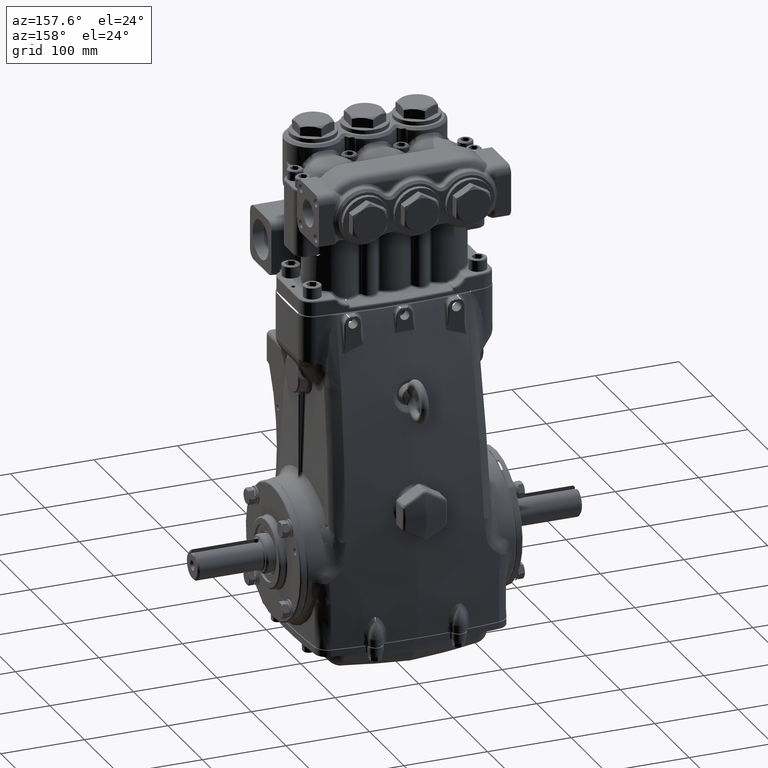
[diagram: clean part render]
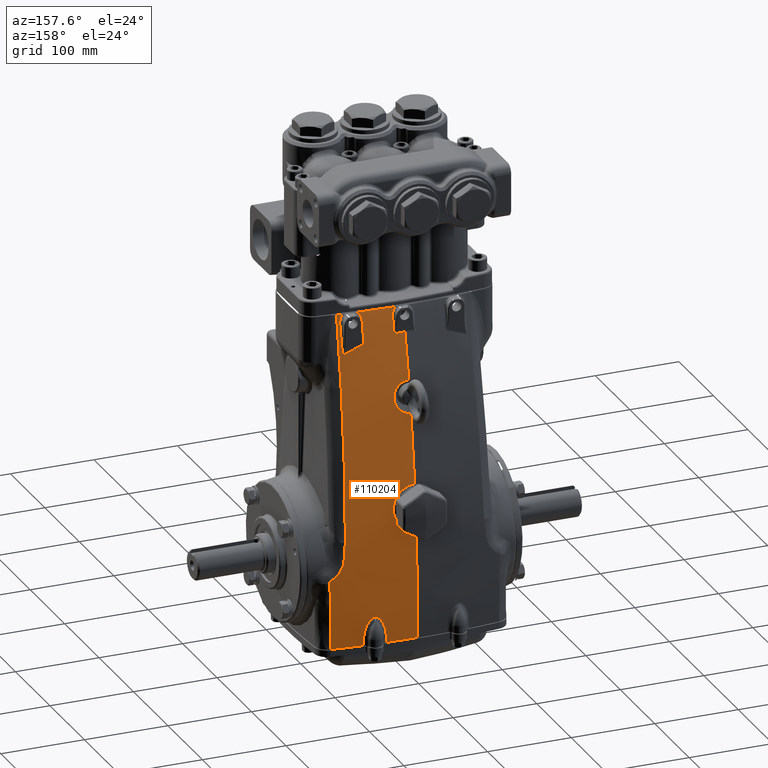
[diagram: same view with one face highlighted and labeled with its STEP entity id]
A machine part, auxiliary view. The second image highlights one B-rep face of the part: STEP entity #110204.
In plain terms, the highlighted face is a freeform B-spline surface patch.
Its self-contained STEP definition (entity closure, byte-faithful):
#73 = CARTESIAN_POINT ( 'NONE',  ( 0.8733267082850935115, 3.510757807458485313, 3.305252506140973878 ) ) ;
#634 = CARTESIAN_POINT ( 'NONE',  ( 4.852819270003458030, 3.503779040536588507, 1.666088105590210811 ) ) ;
#727 = CARTESIAN_POINT ( 'NONE',  ( 0.2691688120389184591, 3.477779146167875535, 3.747954516476541986 ) ) ;
#924 = VERTEX_POINT ( 'NONE', #116254 ) ;
#997 = CARTESIAN_POINT ( 'NONE',  ( 2.088698376224152664, 2.032615686645046438, 11.70912154631549384 ) ) ;
#1283 = CARTESIAN_POINT ( 'NONE',  ( 5.167209544333353222, 3.351205553017578165, -3.567180029828329157 ) ) ;
#1522 = CARTESIAN_POINT ( 'NONE',  ( 2.879681296033736793, 2.001777325807819086, 11.57863119347745062 ) ) ;
#1572 = VERTEX_POINT ( 'NONE', #54577 ) ;
#1932 = CARTESIAN_POINT ( 'NONE',  ( 5.472957139144666527, 1.607457717938263864, 11.77166884028941496 ) ) ;
#2481 = CARTESIAN_POINT ( 'NONE',  ( 3.520116567744814517, 3.539435181202170710, 0.2121852385927017748 ) ) ;
#2736 = CARTESIAN_POINT ( 'NONE',  ( -1.928577636452524757E-15, 3.779527559055117170, -3.464566929133858331 ) ) ;
#2762 = CARTESIAN_POINT ( 'NONE',  ( 0.5049536381081852765, 2.171454191001705780, 11.40465261991973733 ) ) ;
#2795 = CARTESIAN_POINT ( 'NONE',  ( 3.958060253309640064, 3.528091304124755911, -1.065759574945015498 ) ) ;
#3120 = B_SPLINE_CURVE_WITH_KNOTS ( 'NONE', 3,
 ( #59323, #100029, #8613, #49334 ),
 .UNSPECIFIED., .F., .F.,
 ( 4, 4 ),
 ( 0.07683548032053984234, 0.2183527470823627969 ),
 .UNSPECIFIED. ) ;
#3230 = CARTESIAN_POINT ( 'NONE',  ( 2.941979610148215851, 2.268880967348662292, 10.40703492316160705 ) ) ;
#3375 = CARTESIAN_POINT ( 'NONE',  ( 0.09184632771057957279, 3.776525152449977885, -3.618486580175580780 ) ) ;
#3763 = CARTESIAN_POINT ( 'NONE',  ( 1.503370859183929875, 3.753596658721070511, -2.700955149616227402 ) ) ;
#4019 = CARTESIAN_POINT ( 'NONE',  ( 0.6073683219925143373, 2.081169930657294831, 11.77166119179829629 ) ) ;
#4391 = CARTESIAN_POINT ( 'NONE',  ( 2.426368433873683033E-31, 3.056492047846547155, 6.970738720449814352 ) ) ;
#4414 = CARTESIAN_POINT ( 'NONE',  ( 1.787361210172091486, 3.739933249615894351, -2.222994203376392974 ) ) ;
#4432 = CARTESIAN_POINT ( 'NONE',  ( 0.5618534641297614485, 2.839490171766255067, 8.216384047504590171 ) ) ;
#4677 = CARTESIAN_POINT ( 'NONE',  ( 0.7729125040845628014, 3.870372719911775672, 1.666088105590241453 ) ) ;
#4885 = CARTESIAN_POINT ( 'NONE',  ( 3.335086669644261814, 3.530165964862810313, 0.8300797499949442715 ) ) ;
#5055 = CARTESIAN_POINT ( 'NONE',  ( 3.047974002438827767, 1.951203707326858439, 11.72103420910330307 ) ) ;
#5094 = CARTESIAN_POINT ( 'NONE',  ( 0.1316193107680226904, 2.801803584077672937, 8.448046667622547190 ) ) ;
#5335 = CARTESIAN_POINT ( 'NONE',  ( 0.9922770438982243535, 3.762205617985176609, -3.567180029828336263 ) ) ;
#5378 = B_SPLINE_CURVE_WITH_KNOTS ( 'NONE', 3,
 ( #84909, #125581, #34218, #74922 ),
 .UNSPECIFIED., .F., .F.,
 ( 4, 4 ),
 ( 0.001019743324161593440, 0.05691906024910405038 ),
 .UNSPECIFIED. ) ;
#5997 = CARTESIAN_POINT ( 'NONE',  ( 1.587140535387032036, 2.046882848346886163, 11.77166884028941318 ) ) ;
#6048 = CARTESIAN_POINT ( 'NONE',  ( 1.448083069729046768, 3.749224088689538270, -3.305741936332727171 ) ) ;
#6657 = CARTESIAN_POINT ( 'NONE',  ( 1.853946495142653861, 3.256623459385927788, 6.788105265077284400 ) ) ;
#6677 = CARTESIAN_POINT ( 'NONE',  ( 4.022527034758181408, 3.496940846659436275, -0.2549454537783265584 ) ) ;
#6834 = CARTESIAN_POINT ( 'NONE',  ( 7.279105301621049100E-31, 3.475299937072045431, 3.782957108726566098 ) ) ;
#6965 = CARTESIAN_POINT ( 'NONE',  ( 0.01866426497922715061, 3.780291642653942130, -3.424427992065139037 ) ) ;
#7143 = CARTESIAN_POINT ( 'NONE',  ( 3.247199614774384013, 3.435775041202732805, 2.404314508298649233 ) ) ;
#7171 = CARTESIAN_POINT ( 'NONE',  ( 0.004456384663609157075, 3.056492043561971794, 6.970738724742552073 ) ) ;
#7303 = CARTESIAN_POINT ( 'NONE',  ( 2.146491763667625285, 3.706100310773567053, -3.515873479481095742 ) ) ;
#7620 = CARTESIAN_POINT ( 'NONE',  ( 0.8142392989144296989, 3.770025519803677838, -3.424427220812389372 ) ) ;
#7808 = CARTESIAN_POINT ( 'NONE',  ( 3.048361850561355890, 1.956657500317994680, 11.69856850100573276 ) ) ;
#7833 = CARTESIAN_POINT ( 'NONE',  ( 0.4200475372028452115, 3.032338896872305511, 7.103818357967789154 ) ) ;
#7966 = CARTESIAN_POINT ( 'NONE',  ( 3.016919640314343454, 1.943001504886792796, 11.77167648878059758 ) ) ;
#8028 = CARTESIAN_POINT ( 'NONE',  ( 2.041536747216510683, 3.724301690662265685, -2.152060709845910136 ) ) ;
#8508 = CARTESIAN_POINT ( 'NONE',  ( 0.7206146849942330901, 2.952796480231095977, 7.551548676411417915 ) ) ;
#8613 = CARTESIAN_POINT ( 'NONE',  ( -4.439592998116571196E-15, 2.668886950694707050, 9.166073472058796412 ) ) ;
#8643 = CARTESIAN_POINT ( 'NONE',  ( 3.480378942241151741, 1.894773315943172109, 11.77165354330708880 ) ) ;
#8709 = CARTESIAN_POINT ( 'NONE',  ( 2.373803387733699477, 3.700704596208036712, -2.547482343565529828 ) ) ;
#8744 = CARTESIAN_POINT ( 'NONE',  ( 0.6338034442523297063, 3.632636060340988848, 1.917633660815332597 ) ) ;
#8965 = B_SPLINE_CURVE_WITH_KNOTS ( 'NONE', 3,
 ( #16868, #57546, #98259, #6834 ),
 .UNSPECIFIED., .F., .F.,
 ( 4, 4 ),
 ( 0.3170959034011918143, 0.5276515795325527058 ),
 .UNSPECIFIED. ) ;
#9188 = CARTESIAN_POINT ( 'NONE',  ( 0.6426989868568169229, 2.858878596345433287, 8.100184576930310243 ) ) ;
#9317 = CARTESIAN_POINT ( 'NONE',  ( 3.909663389791890431, 3.536467545462993467, -3.464566929133856110 ) ) ;
#9361 = ORIENTED_EDGE ( 'NONE', *, *, #85887, .T. ) ;
#9410 = CARTESIAN_POINT ( 'NONE',  ( 1.029418783390900316, 3.568600676469680710, 2.606827069324715751 ) ) ;
#9881 = CARTESIAN_POINT ( 'NONE',  ( 0.3689263376209954148, 2.096873058416034663, 11.72108867855438241 ) ) ;
#9979 = CARTESIAN_POINT ( 'NONE',  ( 4.271543492749502846, 3.486091687875209288, -3.618486580175591882 ) ) ;
#10072 = CARTESIAN_POINT ( 'NONE',  ( 0.9083528698956195857, 3.515351552600679330, 3.246486174434550787 ) ) ;
#10425 = EDGE_CURVE ( 'NONE', #77905, #88605, #11283, .T. ) ;
#10635 = CARTESIAN_POINT ( 'NONE',  ( 4.792045308734939724, 1.720271994413820726, 11.77166119179817905 ) ) ;
#10730 = CARTESIAN_POINT ( 'NONE',  ( 0.4614696581494263650, 3.482862801178580270, 3.677002194422539283 ) ) ;
#11283 = B_SPLINE_CURVE_WITH_KNOTS ( 'NONE', 3,
 ( #108373, #17007, #57681, #98397, #6965, #47686, #88374, #129057, #37675, #78368, #119024, #27662, #68358, #109033, #17663, #58344, #99050, #7620, #48338, #89020, #129703, #38335 ),
 .UNSPECIFIED., .F., .F.,
 ( 4, 2, 2, 2, 2, 2, 2, 2, 2, 2, 4 ),
 ( 0.0000000000000000000, 0.007422317684300903592, 0.01562543902575300181, 0.04843792439156121427, 0.08125040975736941284, 0.1468753804889858239, 0.2125003512206022627, 0.3437502926838352790, 0.4750002341470682121, 0.7375001170735341338, 1.000000000000000000 ),
 .UNSPECIFIED. ) ;
#11299 = CARTESIAN_POINT ( 'NONE',  ( 5.146563101109652649, 3.456735926573856421, 1.666088105590221469 ) ) ;
#11516 = B_SPLINE_CURVE_WITH_KNOTS ( 'NONE', 3,
 ( #94212, #2795, #43515, #84209, #124864, #33504 ),
 .UNSPECIFIED., .F., .F.,
 ( 4, 2, 4 ),
 ( 0.0000000000000000000, 0.01200916825509858003, 0.02401833651019716007 ),
 .UNSPECIFIED. ) ;
#11555 = CARTESIAN_POINT ( 'NONE',  ( 2.921455274430408533, 2.022674156559516767, 11.47587558134797447 ) ) ;
#11601 = CARTESIAN_POINT ( 'NONE',  ( 1.922113506892764168, 2.214932492923326279, 10.99158942168536335 ) ) ;
#11674 = CARTESIAN_POINT ( 'NONE',  ( 1.926163603352576192, 2.116488260724696424, 11.40497519155297113 ) ) ;
#11961 = CARTESIAN_POINT ( 'NONE',  ( 5.341456586250219019, 3.321576627475916421, -3.567180029828339816 ) ) ;
#12098 = B_SPLINE_CURVE_WITH_KNOTS ( 'NONE', 3,
 ( #28900, #69596, #110250, #18874 ),
 .UNSPECIFIED., .F., .F.,
 ( 4, 4 ),
 ( 0.0000000000000000000, 1.000000000000000000 ),
 .UNSPECIFIED. ) ;
#12516 = CARTESIAN_POINT ( 'NONE',  ( 3.647027291523595949, 3.531603023960265819, 0.04987067897304938574 ) ) ;
#12769 = CARTESIAN_POINT ( 'NONE',  ( 5.245148147835386168E-15, 2.086614173228352520, 11.77165354330708702 ) ) ;
#12789 = CARTESIAN_POINT ( 'NONE',  ( 0.5099501571128493005, 2.188913224549490444, 11.33098419473857987 ) ) ;
#13417 = CARTESIAN_POINT ( 'NONE',  ( 0.09207796433345837028, 3.779527559055117170, -3.464566929133858331 ) ) ;
#13441 = CARTESIAN_POINT ( 'NONE',  ( 0.3433688776963090827, 2.100076676435944201, 11.70908572002509374 ) ) ;
#13800 = CARTESIAN_POINT ( 'NONE',  ( 1.449918851696318844, 3.753734697060149283, -2.974230008064877584 ) ) ;
#14063 = CARTESIAN_POINT ( 'NONE',  ( 0.2536578910174956403, 3.775828391058954292, -3.618486580175577672 ) ) ;
#14282 = ORIENTED_EDGE ( 'NONE', *, *, #94871, .F. ) ;
#14334 = B_SPLINE_CURVE_WITH_KNOTS ( 'NONE', 3,
 ( #4432, #45166, #85853, #126519, #35157, #75855, #116513, #25135, #65818, #106518, #15137, #55825, #96518, #5094, #45815, #86506, #127177, #35813, #76510, #117178, #25806, #66489 ),
 .UNSPECIFIED., .F., .F.,
 ( 4, 2, 2, 2, 2, 2, 2, 2, 2, 2, 4 ),
 ( 0.0000000000000000000, 0.003996669937201158262, 0.004995837421501486859, 0.005995004905801814589, 0.007993339874402477854, 0.009991674843003140252, 0.01199000981160380265, 0.01398834478020446505, 0.01498751226450479104, 0.01548709600665495664, 0.01598667974880511877 ),
 .UNSPECIFIED. ) ;
#14450 = CARTESIAN_POINT ( 'NONE',  ( 1.706781216719245320, 3.744477168076211004, -2.308692450912484873 ) ) ;
#14711 = CARTESIAN_POINT ( 'NONE',  ( 0.8465838755881149869, 2.075548634242388779, 11.77166119179828030 ) ) ;
#15137 = CARTESIAN_POINT ( 'NONE',  ( 0.2601571356431516824, 2.806611693287363263, 8.417717863340211437 ) ) ;
#15381 = CARTESIAN_POINT ( 'NONE',  ( 1.033392015430271149, 3.862919049952886041, 1.666088105590231017 ) ) ;
#16037 = CARTESIAN_POINT ( 'NONE',  ( 1.206874167794767194, 3.754724690457360570, -3.567180029828330490 ) ) ;
#16301 = EDGE_CURVE ( 'NONE', #24704, #55762, #126207, .T. ) ;
#16636 = CARTESIAN_POINT ( 'NONE',  ( 0.1701662186997011383, 2.366950722864919587, 10.57665827853426066 ) ) ;
#16698 = CARTESIAN_POINT ( 'NONE',  ( 1.886664134870914555, 2.030794006280190356, 11.77166884028941318 ) ) ;
#16717 = CARTESIAN_POINT ( 'NONE',  ( 4.025192622172919954, 3.497319579811000612, -0.2757587623723027903 ) ) ;
#16868 = CARTESIAN_POINT ( 'NONE',  ( 2.426368433873683033E-31, 3.056492047846547155, 6.970738720449814352 ) ) ;
#17007 = CARTESIAN_POINT ( 'NONE',  ( 0.003580240475987215079, 3.780296833476090246, -3.424427992926413644 ) ) ;
#17357 = CARTESIAN_POINT ( 'NONE',  ( 2.192517691082281672, 3.234782077177078996, 6.788105265077283512 ) ) ;
#17663 = CARTESIAN_POINT ( 'NONE',  ( 0.4343154790150489664, 3.777366031335028573, -3.424427654907437280 ) ) ;
#17843 = CARTESIAN_POINT ( 'NONE',  ( 3.083322352733954830, 2.337157510713007369, 10.02836769579707266 ) ) ;
#17869 = CARTESIAN_POINT ( 'NONE',  ( 0.2798731182599345502, 3.046459260828721316, 7.025849307034176761 ) ) ;
#18006 = CARTESIAN_POINT ( 'NONE',  ( 2.592469632888194653, 3.672636526991721162, -3.515873479481110842 ) ) ;
#18071 = CARTESIAN_POINT ( 'NONE',  ( 1.996016727116062484, 3.727187006497952204, -2.138605013861039073 ) ) ;
#18261 = CARTESIAN_POINT ( 'NONE',  ( 0.3291895582293558054, 2.097288294947158960, 11.72108940143261435 ) ) ;
#18529 = CARTESIAN_POINT ( 'NONE',  ( 0.6899832807443878613, 2.970651572174605626, 7.449726362109731603 ) ) ;
#18658 = CARTESIAN_POINT ( 'NONE',  ( 3.480378834013866385, 1.894767692750219057, 11.77167648878058159 ) ) ;
#18718 = CARTESIAN_POINT ( 'NONE',  ( 2.284190644097326750, 3.707775836355402976, -2.384464635550700429 ) ) ;
#18755 = CARTESIAN_POINT ( 'NONE',  ( 0.5214456974407321033, 3.640086069871487418, 1.842038020002638943 ) ) ;
#18874 = CARTESIAN_POINT ( 'NONE',  ( 3.047974002438827767, 1.951203707326858439, 11.72103420910330307 ) ) ;
#19125 = CARTESIAN_POINT ( 'NONE',  ( 1.973264075032692633, 3.728616458738231998, -2.136422621240298803 ) ) ;
#19200 = CARTESIAN_POINT ( 'NONE',  ( 0.7034700128075387360, 2.880581387444483887, 7.971202912171843735 ) ) ;
#19332 = CARTESIAN_POINT ( 'NONE',  ( 3.815064366407124652, 1.855203238539271826, 11.77165354330708880 ) ) ;
#19430 = CARTESIAN_POINT ( 'NONE',  ( 1.005064864060040142, 3.580442376625718737, 2.473228772619326943 ) ) ;
#19590 = CARTESIAN_POINT ( 'NONE',  ( 2.102795006353571416, 2.028751148172999397, 11.72106292052996857 ) ) ;
#19902 = CARTESIAN_POINT ( 'NONE',  ( 0.5819280291078096079, 2.093704070973753772, 11.72108729985537146 ) ) ;
#19998 = CARTESIAN_POINT ( 'NONE',  ( 4.270460663811117996, 3.489240027746113970, -3.464566929133868989 ) ) ;
#20089 = CARTESIAN_POINT ( 'NONE',  ( 0.9837902295727162238, 3.528923976406157514, 3.076408586167173720 ) ) ;
#20285 = B_SPLINE_CURVE_WITH_KNOTS ( 'NONE', 3,
 ( #126849, #35490, #76188, #116845, #25478, #66163 ),
 .UNSPECIFIED., .F., .F.,
 ( 4, 2, 4 ),
 ( 0.0000000000000000000, 0.01377649459789080308, 0.02755298919578160616 ),
 .UNSPECIFIED. ) ;
#20624 = B_SPLINE_CURVE_WITH_KNOTS ( 'NONE', 3,
 ( #57868, #98579, #7143, #47866, #88554, #129243, #37858, #78556, #119215, #27852, #68540, #109218, #17843, #58528, #99234, #7808 ),
 .UNSPECIFIED., .F., .F.,
 ( 4, 2, 2, 2, 2, 2, 2, 4 ),
 ( 0.0000000000000000000, 0.03264243258107458329, 0.06528486516214915270, 0.09792729774322372904, 0.1305697303242982776, 0.1958545954864474858, 0.2284970280675220899, 0.2611394606485967218 ),
 .UNSPECIFIED. ) ;
#20665 = CARTESIAN_POINT ( 'NONE',  ( 4.582039247850270947, 3.442311696620030670, -3.618486580175603873 ) ) ;
#20760 = CARTESIAN_POINT ( 'NONE',  ( 0.6056571815774171030, 3.489381784462799896, 3.587695289319027925 ) ) ;
#20983 = B_SPLINE_CURVE_WITH_KNOTS ( 'NONE', 3,
 ( #5055, #45782, #86467, #127138 ),
 .UNSPECIFIED., .F., .F.,
 ( 4, 4 ),
 ( 0.0000000000000000000, 0.09425507187444827351 ),
 .UNSPECIFIED. ) ;
#21324 = CARTESIAN_POINT ( 'NONE',  ( 5.106079848036618074, 1.670502308164350191, 11.77166119179820036 ) ) ;
#21578 = CARTESIAN_POINT ( 'NONE',  ( 2.941019945781940148, 2.046648092384458995, 11.36797252524078239 ) ) ;
#21690 = ORIENTED_EDGE ( 'NONE', *, *, #97192, .T. ) ;
#21696 = CARTESIAN_POINT ( 'NONE',  ( 1.954767087288371119, 2.089099683865084600, 11.51179189539152681 ) ) ;
#21986 = CARTESIAN_POINT ( 'NONE',  ( 5.330941517263692475, 3.425513843878341902, 1.666088105590230795 ) ) ;
#22199 = CARTESIAN_POINT ( 'NONE',  ( 1.901787320747102331E-15, 3.780296879149135147, -3.424427673772763914 ) ) ;
#22541 = CARTESIAN_POINT ( 'NONE',  ( 3.712617404604568350, 3.526436404052130325, -0.01472180527129508809 ) ) ;
#22635 = CARTESIAN_POINT ( 'NONE',  ( 5.472957139144666527, 3.298373256058383607, -3.567180029828340260 ) ) ;
#22790 = CARTESIAN_POINT ( 'NONE',  ( 5.245154553062564334E-15, 2.086608538183193584, 11.77167648878057982 ) ) ;
#23177 = CARTESIAN_POINT ( 'NONE',  ( 3.357286280910636300, 3.537434917263858836, 0.6404082894666356385 ) ) ;
#23423 = CARTESIAN_POINT ( 'NONE',  ( 0.1152416266213332624, 2.086614173228352520, 11.77165354330708880 ) ) ;
#23443 = CARTESIAN_POINT ( 'NONE',  ( 0.3947826122579397023, 2.112704777342991669, 11.65484239511345876 ) ) ;
#24078 = CARTESIAN_POINT ( 'NONE',  ( 0.2542215708781392913, 3.778826883383619162, -3.464566929133854778 ) ) ;
#24138 = VERTEX_POINT ( 'NONE', #99649 ) ;
#24232 = VERTEX_POINT ( 'NONE', #19590 ) ;
#24467 = CARTESIAN_POINT ( 'NONE',  ( 1.651241377271888577, 3.747397938625225411, -2.384462525471408245 ) ) ;
#24518 = EDGE_CURVE ( 'NONE', #924, #126539, #78310, .T. ) ;
#24608 = VERTEX_POINT ( 'NONE', #114093 ) ;
#24617 = ORIENTED_EDGE ( 'NONE', *, *, #115879, .F. ) ;
#24704 = VERTEX_POINT ( 'NONE', #65343 ) ;
#24731 = CARTESIAN_POINT ( 'NONE',  ( 0.5140337625577412473, 3.772663664345201173, -3.618486580175573231 ) ) ;
#25118 = CARTESIAN_POINT ( 'NONE',  ( 1.939589167925357627, 3.730718792896203784, -2.138605117172201364 ) ) ;
#25135 = CARTESIAN_POINT ( 'NONE',  ( 0.3571054481389667745, 2.813026910735805242, 8.377751472312755965 ) ) ;
#25387 = CARTESIAN_POINT ( 'NONE',  ( 1.114009668533421316, 2.067240440788547851, 11.77166119179824477 ) ) ;
#25478 = CARTESIAN_POINT ( 'NONE',  ( 2.776578712294497375, 2.367256534400909995, 10.01647498643020384 ) ) ;
#25806 = CARTESIAN_POINT ( 'NONE',  ( 0.006556217088583293079, 2.800346000895803211, 8.457339784950899997 ) ) ;
#25828 = CARTESIAN_POINT ( 'NONE',  ( 3.351908329817678833, 3.535673982351944744, 0.6863570147038513536 ) ) ;
#26048 = CARTESIAN_POINT ( 'NONE',  ( 1.248211835035086592, 3.855137457873697659, 1.666088105590234125 ) ) ;
#26177 = B_SPLINE_CURVE_WITH_KNOTS ( 'NONE', 3,
 ( #49930, #90597, #131300, #39914, #80599, #121276, #29926, #70611, #111278, #19902, #60592, #101300, #9881, #50590 ),
 .UNSPECIFIED., .F., .F.,
 ( 4, 2, 2, 2, 2, 2, 4 ),
 ( 0.3106790608563200218, 0.3937498454502252332, 0.5249997939336337183, 0.6562497424170421478, 0.7874996909004505774, 0.8531246651421546812, 0.8921763247412216602 ),
 .UNSPECIFIED. ) ;
#26703 = CARTESIAN_POINT ( 'NONE',  ( 1.471930013320035924, 3.743418453583435390, -3.567180029828333154 ) ) ;
#27143 = EDGE_CURVE ( 'NONE', #88605, #24138, #100162, .T. ) ;
#27355 = CARTESIAN_POINT ( 'NONE',  ( 2.215416232719626066, 2.009262782782168522, 11.77166884028940963 ) ) ;
#27374 = CARTESIAN_POINT ( 'NONE',  ( 3.957575300856117639, 3.502685695250202347, -0.1830250696565230983 ) ) ;
#27571 = VERTEX_POINT ( 'NONE', #96346 ) ;
#27662 = CARTESIAN_POINT ( 'NONE',  ( 0.2443178480618151682, 3.779365126413368081, -3.424427862009360446 ) ) ;
#27852 = CARTESIAN_POINT ( 'NONE',  ( 3.133913998702548387, 2.819013614672498669, 7.504584520848139206 ) ) ;
#27876 = CARTESIAN_POINT ( 'NONE',  ( 0.1425666951795569459, 3.054076932072221418, 6.983986189979732195 ) ) ;
#28015 = CARTESIAN_POINT ( 'NONE',  ( 2.609335073250302450, 3.203097206246929396, 6.788105265077278183 ) ) ;
#28142 = CARTESIAN_POINT ( 'NONE',  ( 3.075277783650770314, 1.948537073337893721, 11.72103320572180429 ) ) ;
#28544 = CARTESIAN_POINT ( 'NONE',  ( 0.6074300611338609990, 2.998464660312248231, 7.292667734409299385 ) ) ;
#28679 = CARTESIAN_POINT ( 'NONE',  ( 3.039085619148012007, 3.633061029409601073, -3.515873479481128605 ) ) ;
#28742 = CARTESIAN_POINT ( 'NONE',  ( 2.228721276398926587, 3.711805618293231301, -2.308693809652148765 ) ) ;
#28780 = CARTESIAN_POINT ( 'NONE',  ( 0.3357501053402199287, 3.648721705995646047, 1.755446086565721098 ) ) ;
#28900 = CARTESIAN_POINT ( 'NONE',  ( 3.075277783650770314, 1.948537073337893721, 11.72103320572180429 ) ) ;
#29216 = CARTESIAN_POINT ( 'NONE',  ( 0.7371956410255970926, 2.910208371908691305, 7.797512150901630079 ) ) ;
#29345 = CARTESIAN_POINT ( 'NONE',  ( 3.815064221221454943, 1.855197621372513872, 11.77167648878058159 ) ) ;
#29408 = CARTESIAN_POINT ( 'NONE',  ( 2.484731854132021578, 3.688951047317098997, -2.974232571966362038 ) ) ;
#29443 = CARTESIAN_POINT ( 'NONE',  ( 0.9321466212259140738, 3.597806867510036088, 2.283147083127769150 ) ) ;
#29465 = EDGE_CURVE ( 'NONE', #74318, #24704, #84122, .T. ) ;
#29926 = CARTESIAN_POINT ( 'NONE',  ( 1.182649785452192015, 2.077085494791222064, 11.72108071220657521 ) ) ;
#29996 = CARTESIAN_POINT ( 'NONE',  ( 2.486580493105264633, 3.681970697799852310, -3.424426890099034004 ) ) ;
#30022 = CARTESIAN_POINT ( 'NONE',  ( 4.162177769972608132, 1.810919968495875665, 11.77165354330707814 ) ) ;
#30112 = CARTESIAN_POINT ( 'NONE',  ( 1.011310082946488276, 3.536973429753559550, 2.978058720179383556 ) ) ;
#30681 = CARTESIAN_POINT ( 'NONE',  ( 4.580943909269144854, 3.445473805234652964, -3.464566929133880979 ) ) ;
#30774 = CARTESIAN_POINT ( 'NONE',  ( 0.6862493136857781284, 3.494102272294836720, 3.523942007390577835 ) ) ;
#31254 = CARTESIAN_POINT ( 'NONE',  ( 3.468287757589834541, 3.589727359500390680, -3.424423283203490431 ) ) ;
#31343 = CARTESIAN_POINT ( 'NONE',  ( 4.884117836039036931, 3.395809871824721160, -3.618486580175574563 ) ) ;
#31426 = VERTEX_POINT ( 'NONE', #110523 ) ;
#31438 = CARTESIAN_POINT ( 'NONE',  ( 7.279105301621049100E-31, 3.475299937072045431, 3.782957108726566098 ) ) ;
#31561 = CARTESIAN_POINT ( 'NONE',  ( 3.075277783650770314, 1.948537073337893721, 11.72103320572180429 ) ) ;
#31700 = CARTESIAN_POINT ( 'NONE',  ( 2.003835267196671488, 2.062085479407867350, 11.61083578950713324 ) ) ;
#31992 = CARTESIAN_POINT ( 'NONE',  ( 5.310323719115619845, 1.636156385515110445, 11.77166119179825188 ) ) ;
#32245 = CARTESIAN_POINT ( 'NONE',  ( 2.789180568853216524, 1.981359769075150101, 11.69621483026512543 ) ) ;
#32553 = CARTESIAN_POINT ( 'NONE',  ( 3.957575300856117639, 3.502685695250202347, -0.1830250696565230983 ) ) ;
#32647 = CARTESIAN_POINT ( 'NONE',  ( 5.472957139144667416, 3.400455080633130844, 1.666088105590230795 ) ) ;
#32735 = CARTESIAN_POINT ( 'NONE',  ( 7.279105301621049100E-31, 3.475299937072045431, 3.782957108726566098 ) ) ;
#33191 = CARTESIAN_POINT ( 'NONE',  ( 3.401225199785841369, 3.541398924710303930, 0.4611027466014151477 ) ) ;
#33443 = CARTESIAN_POINT ( 'NONE',  ( 0.1152416621717195638, 2.086608538183193584, 11.77167648878058159 ) ) ;
#33462 = CARTESIAN_POINT ( 'NONE',  ( 0.4706595538336639239, 2.142276307189520335, 11.52846905538182298 ) ) ;
#33504 = CARTESIAN_POINT ( 'NONE',  ( 4.024767326900356323, 3.497556249445210597, -0.2810403410606585051 ) ) ;
#33720 = B_SPLINE_CURVE_WITH_KNOTS ( 'NONE', 3,
 ( #32553, #73248, #113906, #22541, #63224, #103915, #12516, #53210, #93899, #2481, #43204, #83900, #124554, #33191, #73896, #114548, #23177, #63866 ),
 .UNSPECIFIED., .F., .F.,
 ( 4, 2, 2, 2, 2, 2, 2, 2, 4 ),
 ( 0.0000000000000000000, 0.006990497734767574939, 0.008738122168459459133, 0.01048574660215134333, 0.01398099546953508222, 0.01747624433691882112, 0.02097149320430255481, 0.02446674207168629545, 0.02796199093907003261 ),
 .UNSPECIFIED. ) ;
#34090 = CARTESIAN_POINT ( 'NONE',  ( 0.3105895569424969027, 2.085522069509412102, 11.77165354330704083 ) ) ;
#34218 = CARTESIAN_POINT ( 'NONE',  ( 3.956488121064076324, 3.544741315970752815, -1.957219153233058506 ) ) ;
#34487 = CARTESIAN_POINT ( 'NONE',  ( 1.561445849148193288, 3.751560799230096332, -2.547479701091002635 ) ) ;
#34749 = CARTESIAN_POINT ( 'NONE',  ( 0.5149578666385256076, 3.775650418719477042, -3.464566929133850337 ) ) ;
#35016 = EDGE_CURVE ( 'NONE', #77163, #89652, #128897, .T. ) ;
#35143 = CARTESIAN_POINT ( 'NONE',  ( 1.894064700851531446, 3.733532004044151087, -2.152060852376258104 ) ) ;
#35157 = CARTESIAN_POINT ( 'NONE',  ( 0.4254548970009650599, 2.819524118404024282, 8.337703002803939611 ) ) ;
#35402 = CARTESIAN_POINT ( 'NONE',  ( 0.7349717768749606250, 3.768231822093953021, -3.618486580175579004 ) ) ;
#35490 = CARTESIAN_POINT ( 'NONE',  ( 2.096309718821030899, 2.367122706321125758, 10.26185737745098692 ) ) ;
#35607 = CARTESIAN_POINT ( 'NONE',  ( 3.269204732900450772, 3.494166244084205619, 1.549803905489431921 ) ) ;
#35813 = CARTESIAN_POINT ( 'NONE',  ( 0.03310760826585624345, 2.800436616640732179, 8.456760801675013539 ) ) ;
#36060 = CARTESIAN_POINT ( 'NONE',  ( 1.329266146724833009, 2.058869309920938306, 11.77166119179824300 ) ) ;
#36211 = EDGE_CURVE ( 'NONE', #44782, #111206, #20624, .T. ) ;
#36720 = CARTESIAN_POINT ( 'NONE',  ( 1.510842136852395434, 3.843602111723632309, 1.666088105590234569 ) ) ;
#36880 = ORIENTED_EDGE ( 'NONE', *, *, #36211, .F. ) ;
#37184 = CARTESIAN_POINT ( 'NONE',  ( 0.5099501571128493005, 2.188913224549490444, 11.33098419473857987 ) ) ;
#37365 = CARTESIAN_POINT ( 'NONE',  ( 1.787857065752813002, 3.727583758897499600, -3.567180029828340260 ) ) ;
#37383 = CARTESIAN_POINT ( 'NONE',  ( 3.992174508698265623, 3.499121618092365882, -0.2063480383189242595 ) ) ;
#37675 = CARTESIAN_POINT ( 'NONE',  ( 0.1018040044832867475, 3.780136294646871953, -3.424427967578548060 ) ) ;
#37858 = CARTESIAN_POINT ( 'NONE',  ( 3.187411999549493391, 3.180972947435750431, 4.960797234820099710 ) ) ;
#37882 = CARTESIAN_POINT ( 'NONE',  ( 0.04508491497368615625, 3.056246480088033568, 6.972085310057500429 ) ) ;
#38016 = CARTESIAN_POINT ( 'NONE',  ( 2.617725865355033044, 1.978462945838119769, 11.77166884028940963 ) ) ;
#38143 = CARTESIAN_POINT ( 'NONE',  ( 3.048361850561355890, 1.956657500317994680, 11.69856850100573276 ) ) ;
#38335 = CARTESIAN_POINT ( 'NONE',  ( 1.447214697635420100, 3.747031218138626496, -3.424426838814072394 ) ) ;
#38396 = CARTESIAN_POINT ( 'NONE',  ( 1.922122788353095135, 2.134331509641288704, 11.33102910461567525 ) ) ;
#38560 = CARTESIAN_POINT ( 'NONE',  ( 0.5165998983450890147, 3.017936561374008786, 7.183787123562115795 ) ) ;
#38576 = CARTESIAN_POINT ( 'NONE',  ( 7.605944187338040869E-16, 3.812515687427703082, -1.713049435544660382 ) ) ;
#38690 = CARTESIAN_POINT ( 'NONE',  ( 3.024283775525298701, 3.166270219949427034, 6.788105265077287953 ) ) ;
#38752 = CARTESIAN_POINT ( 'NONE',  ( 2.148204978621983674, 3.717346947805804547, -2.222994521279234803 ) ) ;
#38786 = CARTESIAN_POINT ( 'NONE',  ( 0.1371330742698348704, 3.653264855186496352, 1.710435820775985549 ) ) ;
#39145 = EDGE_CURVE ( 'NONE', #105381, #44782, #51793, .T. ) ;
#39215 = CARTESIAN_POINT ( 'NONE',  ( 0.7404268082824715380, 2.928453932034768226, 7.691546238491211440 ) ) ;
#39350 = CARTESIAN_POINT ( 'NONE',  ( 3.551131950333158649, 3.578937583121846178, -3.515873479481092634 ) ) ;
#39405 = ORIENTED_EDGE ( 'NONE', *, *, #63942, .F. ) ;
#39413 = CARTESIAN_POINT ( 'NONE',  ( 2.431678934396354297, 3.695480065410873038, -2.700957734191270720 ) ) ;
#39447 = CARTESIAN_POINT ( 'NONE',  ( 0.8266325770651331561, 3.614105567595518487, 2.109348480591136443 ) ) ;
#39825 = CARTESIAN_POINT ( 'NONE',  ( 0.5099476513739285011, 2.249991768609127085, 11.07376066516228796 ) ) ;
#39877 = CARTESIAN_POINT ( 'NONE',  ( 0.5618534641297614485, 2.839490171766255067, 8.216384047504590171 ) ) ;
#39914 = CARTESIAN_POINT ( 'NONE',  ( 1.716375957087106441, 2.052498921085579742, 11.72107166240338039 ) ) ;
#39983 = CARTESIAN_POINT ( 'NONE',  ( 2.485063582164364959, 3.687720508793976837, -3.068355571221270228 ) ) ;
#40010 = CARTESIAN_POINT ( 'NONE',  ( 4.162177603785644386, 1.810914355847796475, 11.77167648878057093 ) ) ;
#40107 = CARTESIAN_POINT ( 'NONE',  ( 1.038121113958294428, 3.550987742800724600, 2.810288334301886959 ) ) ;
#40681 = CARTESIAN_POINT ( 'NONE',  ( 4.471410051156515131, 1.768530620356180139, 11.77165354330703195 ) ) ;
#40774 = CARTESIAN_POINT ( 'NONE',  ( 0.8260164220419129455, 3.505240893802816338, 3.376403974158812105 ) ) ;
#41075 = B_SPLINE_SURFACE_WITH_KNOTS ( 'NONE', 3, 3, ( 
 ( #22790, #63461, #104159, #12769, #53461, #94153, #2736, #43455, #84148, #124803 ),
 ( #33443, #74140, #114795, #23423, #64116, #104816, #13417, #54103, #94780, #3375 ),
 ( #44092, #84780, #125446, #34090, #74796, #115456, #24078, #64760, #105460, #14063 ),
 ( #54753, #95434, #4019, #44749, #85439, #126114, #34749, #75453, #116106, #24731 ),
 ( #65410, #106099, #14711, #55403, #96100, #4677, #45404, #86097, #126764, #35402 ),
 ( #76099, #116756, #25387, #66071, #106761, #15381, #56066, #96764, #5335, #46057 ),
 ( #86750, #127420, #36060, #76758, #117422, #26048, #66729, #107414, #16037, #56725 ),
 ( #97430, #5997, #46721, #87419, #128090, #36720, #77407, #118070, #26703, #67383 ),
 ( #108075, #16698, #57372, #98085, #6657, #47381, #88065, #128738, #37365, #78063 ),
 ( #118716, #27355, #68047, #108728, #17357, #58035, #98737, #7303, #48022, #88710 ),
 ( #129397, #38016, #78717, #119383, #28015, #68711, #109377, #18006, #58683, #99385 ),
 ( #7966, #48682, #89369, #130062, #38690, #79384, #120040, #28679, #69375, #110035 ),
 ( #18658, #59352, #100056, #8643, #49364, #90041, #130738, #39350, #80043, #120704 ),
 ( #29345, #70037, #110699, #19332, #60030, #100733, #9317, #50028, #90695, #131399 ),
 ( #40010, #80698, #121374, #30022, #70710, #111371, #19998, #60688, #101404, #9979 ),
 ( #50686, #91354, #132063, #40681, #81363, #122042, #30681, #71379, #112033, #20665 ),
 ( #61336, #102049, #10635, #51342, #92023, #634, #41340, #82028, #122704, #31343 ),
 ( #72031, #112690, #21324, #62008, #102722, #11299, #52008, #92683, #1283, #42001 ),
 ( #82685, #123358, #31992, #72692, #113351, #21986, #62667, #103371, #11961, #52653 ),
 ( #93335, #1932, #42659, #83347, #124012, #32647, #73338, #113998, #22635, #63314 ) ),
 .UNSPECIFIED., .F., .F., .F.,
 ( 4, 1, 1, 1, 1, 1, 1, 1, 1, 1, 1, 1, 1, 1, 1, 1, 1, 4 ),
 ( 4, 3, 3, 4 ),
 ( 0.0000000000000000000, 0.01992422968235842140, 0.03456898174906491983, 0.05424769559357718596, 0.06487690519641009512, 0.08584053764134867703, 0.09628566213973675791, 0.1159744118838200583, 0.1459144473511018725, 0.1632236321469078544, 0.1985379101840372418, 0.2282313374881382306, 0.2584266254959273201, 0.2665154733350832417, 0.2978309836667631938, 0.3195247496290842815, 0.3280157347226483333, 0.3567612557956247876 ),
 ( -1.534748082744804150E-06, 0.0000000000000000000, 1.000000000000000000, 1.010000000000000009 ),
 .UNSPECIFIED. ) ;
#41172 = VERTEX_POINT ( 'NONE', #18261 ) ;
#41256 = CARTESIAN_POINT ( 'NONE',  ( 2.486580493105264633, 3.681970697799852310, -3.424426890099034004 ) ) ;
#41340 = CARTESIAN_POINT ( 'NONE',  ( 4.883206227319553783, 3.398954604893998255, -3.464566929133852113 ) ) ;
#41439 = CARTESIAN_POINT ( 'NONE',  ( 0.2361916591066537952, 3.477190926609281085, 3.756237194875698737 ) ) ;
#41710 = CARTESIAN_POINT ( 'NONE',  ( 2.075259964906321475, 2.036607043019153185, 11.69642671431908809 ) ) ;
#42001 = CARTESIAN_POINT ( 'NONE',  ( 5.167411960443389241, 3.350170941512124134, -3.618486580175569678 ) ) ;
#42165 = VERTEX_POINT ( 'NONE', #53129 ) ;
#42246 = CARTESIAN_POINT ( 'NONE',  ( 2.860721376650469328, 1.995845229152549249, 11.61028039293616132 ) ) ;
#42659 = CARTESIAN_POINT ( 'NONE',  ( 5.472957139144666527, 1.607459596286650250, 11.77166119179825188 ) ) ;
#43204 = CARTESIAN_POINT ( 'NONE',  ( 3.495909033482428097, 3.540436192077720978, 0.2518544903901716592 ) ) ;
#43455 = CARTESIAN_POINT ( 'NONE',  ( -1.962849182129397175E-15, 3.778526756853404223, -3.515873479481098851 ) ) ;
#43474 = CARTESIAN_POINT ( 'NONE',  ( 0.4990239963144375568, 2.162904764816685255, 11.44082517308050306 ) ) ;
#43515 = CARTESIAN_POINT ( 'NONE',  ( 3.968290165586114693, 3.523263059867010050, -0.9085640490669377733 ) ) ;
#43952 = CARTESIAN_POINT ( 'NONE',  ( 2.941998717731987512, 2.164882209310877492, 10.86971374829978565 ) ) ;
#44092 = CARTESIAN_POINT ( 'NONE',  ( 0.3105896434531554839, 2.085516433863509711, 11.77167648878053363 ) ) ;
#44478 = CARTESIAN_POINT ( 'NONE',  ( 1.526172145244721667, 3.752883460819519179, -2.634286891848193868 ) ) ;
#44749 = CARTESIAN_POINT ( 'NONE',  ( 0.6073682747169487639, 2.081171809806422246, 11.77165354330713321 ) ) ;
#44782 = VERTEX_POINT ( 'NONE', #71873 ) ;
#45148 = CARTESIAN_POINT ( 'NONE',  ( 1.805088076041678757, 3.738895607890095008, -2.207559827024686339 ) ) ;
#45166 = CARTESIAN_POINT ( 'NONE',  ( 0.5278241253279284395, 2.832787909258157821, 8.256732517076569522 ) ) ;
#45195 = CARTESIAN_POINT ( 'NONE',  ( 3.047974002438827767, 1.951203707326858439, 11.72103420910330307 ) ) ;
#45352 = ORIENTED_EDGE ( 'NONE', *, *, #60056, .F. ) ;
#45404 = CARTESIAN_POINT ( 'NONE',  ( 0.7360768465995122245, 3.771206799700297374, -3.464566929133856554 ) ) ;
#45612 = CARTESIAN_POINT ( 'NONE',  ( 3.316175873532175800, 3.524352913421338940, 0.9735432736710527557 ) ) ;
#45735 = CARTESIAN_POINT ( 'NONE',  ( 1.922095920021692050, 2.367095942449277235, 10.31063246072288386 ) ) ;
#45782 = CARTESIAN_POINT ( 'NONE',  ( 2.952497887707134616, 1.960487052703961286, 11.72103769773075577 ) ) ;
#45815 = CARTESIAN_POINT ( 'NONE',  ( 0.1054857070894420074, 2.801254753152029320, 8.451541673629400009 ) ) ;
#46057 = CARTESIAN_POINT ( 'NONE',  ( 0.9918739559420277629, 3.761218231397257750, -3.618486580175576783 ) ) ;
#46482 = B_SPLINE_CURVE_WITH_KNOTS ( 'NONE', 3,
 ( #12789, #53481, #94172, #2762, #43474, #84165, #124827, #33462, #74160, #114818, #23443, #64135, #104836, #13441, #54127 ),
 .UNSPECIFIED., .F., .F.,
 ( 4, 2, 1, 2, 2, 2, 2, 4 ),
 ( 0.0000000000000000000, 0.001450647595035343268, 0.002901295190070686536, 0.004351942785106029804, 0.005802590380141373072, 0.008703885570212059608, 0.01015453316524739941, 0.01160518076028274094 ),
 .UNSPECIFIED. ) ;
#46721 = CARTESIAN_POINT ( 'NONE',  ( 1.587140476837711534, 2.046884729551357918, 11.77166119179824832 ) ) ;
#46773 = CARTESIAN_POINT ( 'NONE',  ( 1.448827917767014251, 3.751064775926534978, -3.187050668098594386 ) ) ;
#47258 = ORIENTED_EDGE ( 'NONE', *, *, #112331, .T. ) ;
#47381 = CARTESIAN_POINT ( 'NONE',  ( 1.821228955840753061, 3.827681579267863121, 1.666088105590229684 ) ) ;
#47400 = CARTESIAN_POINT ( 'NONE',  ( 4.017520617434954922, 3.497059505317807737, -0.2399026279863101241 ) ) ;
#47686 = CARTESIAN_POINT ( 'NONE',  ( 0.03846147198040698184, 3.780277157642622843, -3.424427989681956941 ) ) ;
#47866 = CARTESIAN_POINT ( 'NONE',  ( 3.226349643378954912, 3.363306529552681390, 3.257775733343591718 ) ) ;
#47893 = CARTESIAN_POINT ( 'NONE',  ( 0.009060219618420973717, 3.056484297695424956, 6.970781219128510564 ) ) ;
#48022 = CARTESIAN_POINT ( 'NONE',  ( 2.146262778954119543, 3.705115858015877173, -3.567180029828336707 ) ) ;
#48246 = ORIENTED_EDGE ( 'NONE', *, *, #74232, .F. ) ;
#48338 = CARTESIAN_POINT ( 'NONE',  ( 0.9408573345663645560, 3.766495515055890309, -3.424427083719387532 ) ) ;
#48553 = CARTESIAN_POINT ( 'NONE',  ( 0.4345479306448490342, 3.030452708932359851, 7.114266107948449047 ) ) ;
#48574 = EDGE_CURVE ( 'NONE', #57729, #42165, #3120, .T. ) ;
#48682 = CARTESIAN_POINT ( 'NONE',  ( 3.016919651616383646, 1.943003382287464165, 11.77166884028943272 ) ) ;
#48742 = CARTESIAN_POINT ( 'NONE',  ( 2.073525337370722976, 3.722252935474453128, -2.167121886168210221 ) ) ;
#48777 = CARTESIAN_POINT ( 'NONE',  ( 0.0000000000000000000, 3.654130161681601319, 1.701892301469291491 ) ) ;
#48906 = VERTEX_POINT ( 'NONE', #37184 ) ;
#49228 = CARTESIAN_POINT ( 'NONE',  ( 0.7278770747608588332, 2.946710054304588322, 7.586424641682690151 ) ) ;
#49334 = CARTESIAN_POINT ( 'NONE',  ( -2.426368433873683033E-31, 2.800345999324967750, 8.457339793419727414 ) ) ;
#49364 = CARTESIAN_POINT ( 'NONE',  ( 3.503884924995972039, 3.116079712710064786, 6.788105265077288841 ) ) ;
#49425 = CARTESIAN_POINT ( 'NONE',  ( 2.383177851489272747, 3.699905373933856989, -2.568849113295084585 ) ) ;
#49457 = CARTESIAN_POINT ( 'NONE',  ( 0.6861488396963221215, 3.628416581824221776, 1.960845442851478770 ) ) ;
#49893 = CARTESIAN_POINT ( 'NONE',  ( 0.6337996687579305899, 2.856300720995040621, 8.115573416256081529 ) ) ;
#49930 = CARTESIAN_POINT ( 'NONE',  ( 2.102795006353571416, 2.028751148172999397, 11.72106292052996857 ) ) ;
#50028 = CARTESIAN_POINT ( 'NONE',  ( 3.909978719869839470, 3.535427912998270195, -3.515873479481096631 ) ) ;
#50123 = CARTESIAN_POINT ( 'NONE',  ( 1.031509617363517428, 3.567106530136070930, 2.623850643853792963 ) ) ;
#50245 = ORIENTED_EDGE ( 'NONE', *, *, #10425, .F. ) ;
#50590 = CARTESIAN_POINT ( 'NONE',  ( 0.3291895582293558054, 2.097288294947158960, 11.72108940143261435 ) ) ;
#50686 = CARTESIAN_POINT ( 'NONE',  ( 4.471409883049637379, 1.768525009821256377, 11.77167648878052475 ) ) ;
#50759 = EDGE_CURVE ( 'NONE', #54994, #74318, #20285, .T. ) ;
#50786 = CARTESIAN_POINT ( 'NONE',  ( 0.8999946134492086136, 3.514186245791924623, 3.261333219806259898 ) ) ;
#51342 = CARTESIAN_POINT ( 'NONE',  ( 4.792045355371264748, 1.720273865481031450, 11.77165354330701419 ) ) ;
#51440 = CARTESIAN_POINT ( 'NONE',  ( 0.3670291315825974232, 3.480034944949883968, 3.716353844896888692 ) ) ;
#51793 = B_SPLINE_CURVE_WITH_KNOTS ( 'NONE', 3,
 ( #96308, #4885, #45612, #86299, #126971, #35607 ),
 .UNSPECIFIED., .F., .F.,
 ( 4, 2, 4 ),
 ( 0.0000000000000000000, 0.01103432557004347184, 0.02206865114008694367 ),
 .UNSPECIFIED. ) ;
#52008 = CARTESIAN_POINT ( 'NONE',  ( 5.166804712113282072, 3.353274776028486226, -3.464566929133847228 ) ) ;
#52255 = CARTESIAN_POINT ( 'NONE',  ( 2.909796763776722806, 2.015373524481933742, 11.51074649501153147 ) ) ;
#52300 = CARTESIAN_POINT ( 'NONE',  ( 1.922104550611924756, 2.292522915614044088, 10.65144719120739580 ) ) ;
#52368 = CARTESIAN_POINT ( 'NONE',  ( 1.922123809367781933, 2.125464932124274675, 11.36836944636462121 ) ) ;
#52653 = CARTESIAN_POINT ( 'NONE',  ( 5.341559675161851040, 3.320557635158245535, -3.618486580175580780 ) ) ;
#53129 = CARTESIAN_POINT ( 'NONE',  ( -2.426368433873683033E-31, 2.800345999324967750, 8.457339793419727414 ) ) ;
#53210 = CARTESIAN_POINT ( 'NONE',  ( 3.601131524009420826, 3.534870486586991323, 0.1009905085611668973 ) ) ;
#53461 = CARTESIAN_POINT ( 'NONE',  ( 3.853991025291895839E-15, 3.310494761505669459, 6.788105265077287065 ) ) ;
#53481 = CARTESIAN_POINT ( 'NONE',  ( 0.5099503376115026576, 2.184513486970778295, 11.34951305862407800 ) ) ;
#53767 = B_SPLINE_CURVE_WITH_KNOTS ( 'NONE', 3,
 ( #92395, #997, #41710, #82394, #123063, #31700, #72396, #113058, #21696, #62383, #103089, #11674, #52368, #93047 ),
 .UNSPECIFIED., .F., .F.,
 ( 4, 2, 2, 2, 2, 2, 4 ),
 ( 0.002582751813968514002, 0.004020895202946114799, 0.005459038591923714295, 0.008335325369879038188, 0.009773468758856625541, 0.01121161214783421463, 0.01408789892578955587 ),
 .UNSPECIFIED. ) ;
#54103 = CARTESIAN_POINT ( 'NONE',  ( 0.09200075212583211370, 3.778526756853404223, -3.515873479481098851 ) ) ;
#54127 = CARTESIAN_POINT ( 'NONE',  ( 0.3291895582293558054, 2.097288294947158960, 11.72108940143261435 ) ) ;
#54486 = CARTESIAN_POINT ( 'NONE',  ( 1.460401765533258844, 3.754212180687106493, -2.881855827106080348 ) ) ;
#54577 = CARTESIAN_POINT ( 'NONE',  ( 1.984111132156669566, 3.727934984330343759, -2.137463051047669538 ) ) ;
#54753 = CARTESIAN_POINT ( 'NONE',  ( 0.6073684165436453730, 2.081166172359040001, 11.77167648878062600 ) ) ;
#54994 = VERTEX_POINT ( 'NONE', #45735 ) ;
#55145 = CARTESIAN_POINT ( 'NONE',  ( 1.737426133053374011, 3.742785969842905125, -2.272978183218842485 ) ) ;
#55403 = CARTESIAN_POINT ( 'NONE',  ( 0.8465838190546602915, 2.075550513993995150, 11.77165354330711544 ) ) ;
#55762 = VERTEX_POINT ( 'NONE', #119227 ) ;
#55825 = CARTESIAN_POINT ( 'NONE',  ( 0.2095221922085636901, 2.804270214625033564, 8.432433907178610966 ) ) ;
#56066 = CARTESIAN_POINT ( 'NONE',  ( 0.9930832198106175346, 3.764180391161014327, -3.464566929133854334 ) ) ;
#56725 = CARTESIAN_POINT ( 'NONE',  ( 1.206468896547313152, 3.753740251561121788, -3.618486580175571454 ) ) ;
#57310 = CARTESIAN_POINT ( 'NONE',  ( 0.3402254847084953959, 2.366954046111033882, 10.57045866532416234 ) ) ;
#57372 = CARTESIAN_POINT ( 'NONE',  ( 1.886664084657733831, 2.030795887613818351, 11.77166119179824832 ) ) ;
#57393 = CARTESIAN_POINT ( 'NONE',  ( 4.025049024739797865, 3.497154041686778569, -0.2704346335643836308 ) ) ;
#57546 = CARTESIAN_POINT ( 'NONE',  ( -3.196343411175747841E-15, 3.225021646629493866, 5.912001805326092985 ) ) ;
#57587 = VERTEX_POINT ( 'NONE', #58766 ) ;
#57681 = CARTESIAN_POINT ( 'NONE',  ( 0.007164389041385496766, 3.780296267402503130, -3.424427992831557077 ) ) ;
#57729 = VERTEX_POINT ( 'NONE', #112110 ) ;
#57868 = CARTESIAN_POINT ( 'NONE',  ( 3.269204732900450772, 3.494166244084205619, 1.549803905489431921 ) ) ;
#58035 = CARTESIAN_POINT ( 'NONE',  ( 2.169619219731707016, 3.805530039300215606, 1.666088105590230795 ) ) ;
#58344 = CARTESIAN_POINT ( 'NONE',  ( 0.5609662830216213258, 3.775364835587625034, -3.424427507711116370 ) ) ;
#58528 = CARTESIAN_POINT ( 'NONE',  ( 3.066112386415988933, 2.153713693125371531, 10.86498774305070469 ) ) ;
#58557 = CARTESIAN_POINT ( 'NONE',  ( 0.3445574489658475015, 3.040890423840047152, 7.056542576719021298 ) ) ;
#58683 = CARTESIAN_POINT ( 'NONE',  ( 2.592385725224701787, 3.671643223921336574, -3.567180029828351806 ) ) ;
#58750 = CARTESIAN_POINT ( 'NONE',  ( 2.007623998341905303, 3.726454688166760842, -2.140962487345478671 ) ) ;
#58766 = CARTESIAN_POINT ( 'NONE',  ( 3.957781727276481476, 3.531041095253700135, -1.223694571038026702 ) ) ;
#59216 = CARTESIAN_POINT ( 'NONE',  ( 0.7019089523190054081, 2.964806425099193898, 7.482961821840446781 ) ) ;
#59323 = CARTESIAN_POINT ( 'NONE',  ( 9.705473735494732134E-31, 2.366950722864918255, 10.57665827853426066 ) ) ;
#59352 = CARTESIAN_POINT ( 'NONE',  ( 3.480378870089628318, 1.894769567147870148, 11.77166884028941851 ) ) ;
#59414 = CARTESIAN_POINT ( 'NONE',  ( 2.321582004981796565, 3.704949339181072610, -2.443545529025966445 ) ) ;
#59450 = CARTESIAN_POINT ( 'NONE',  ( 0.5504903424137328471, 3.638348491730704293, 1.859588072616493282 ) ) ;
#59823 = CARTESIAN_POINT ( 'NONE',  ( 1.984111132156669566, 3.727934984330343759, -2.137463051047669538 ) ) ;
#59897 = CARTESIAN_POINT ( 'NONE',  ( 0.6673327816289111869, 2.866883710482619030, 8.052516058010294131 ) ) ;
#60030 = CARTESIAN_POINT ( 'NONE',  ( 3.846597374202047170, 3.075200800515574873, 6.788105265077287953 ) ) ;
#60056 = EDGE_CURVE ( 'NONE', #924, #77905, #67769, .T. ) ;
#60124 = CARTESIAN_POINT ( 'NONE',  ( 1.021538932138479350, 3.573054311480178935, 2.556365884069527361 ) ) ;
#60592 = CARTESIAN_POINT ( 'NONE',  ( 0.5151641289255387557, 2.094866612995622379, 11.72108779396292988 ) ) ;
#60688 = CARTESIAN_POINT ( 'NONE',  ( 4.270821606790579317, 3.488190581122478928, -3.515873479481109953 ) ) ;
#60785 = CARTESIAN_POINT ( 'NONE',  ( 0.9610687023262580730, 3.523769423611802232, 3.140184059703249098 ) ) ;
#60982 = EDGE_CURVE ( 'NONE', #24232, #41172, #26177, .T. ) ;
#61336 = CARTESIAN_POINT ( 'NONE',  ( 4.792045215462290564, 1.720268252279398835, 11.77167648878050876 ) ) ;
#61432 = CARTESIAN_POINT ( 'NONE',  ( 0.5917451397945919789, 3.488658221077960420, 3.597535458934494557 ) ) ;
#61587 = ORIENTED_EDGE ( 'NONE', *, *, #16301, .T. ) ;
#62008 = CARTESIAN_POINT ( 'NONE',  ( 5.106079879102392027, 1.670504181323860138, 11.77165354330703551 ) ) ;
#62265 = CARTESIAN_POINT ( 'NONE',  ( 2.937063316127539903, 2.038311024488808521, 11.40448764478979804 ) ) ;
#62383 = CARTESIAN_POINT ( 'NONE',  ( 1.942924686370599341, 2.098294082319703158, 11.47660659340112055 ) ) ;
#62401 = EDGE_CURVE ( 'NONE', #24608, #31426, #78372, .T. ) ;
#62667 = CARTESIAN_POINT ( 'NONE',  ( 5.341250408426953200, 3.323614612111258193, -3.464566929133858331 ) ) ;
#62849 = ORIENTED_EDGE ( 'NONE', *, *, #88921, .F. ) ;
#62972 = EDGE_CURVE ( 'NONE', #80780, #55762, #20983, .T. ) ;
#63224 = CARTESIAN_POINT ( 'NONE',  ( 3.695634013244609495, 3.527833446340042034, 0.001003933168903212853 ) ) ;
#63314 = CARTESIAN_POINT ( 'NONE',  ( 5.472957139144666527, 3.297372453856670660, -3.618486580175581224 ) ) ;
#63461 = CARTESIAN_POINT ( 'NONE',  ( 5.245152417986838805E-15, 2.086610416531579748, 11.77166884028941496 ) ) ;
#63866 = CARTESIAN_POINT ( 'NONE',  ( 3.351908329817678833, 3.535673982351944744, 0.6863570147038513536 ) ) ;
#63942 = EDGE_CURVE ( 'NONE', #24138, #27571, #128894, .T. ) ;
#64116 = CARTESIAN_POINT ( 'NONE',  ( 0.1075204058587092976, 3.310494761505669459, 6.788105265077287953 ) ) ;
#64135 = CARTESIAN_POINT ( 'NONE',  ( 0.3826192350390744124, 2.109363192300772294, 11.66918019247287930 ) ) ;
#64174 = CARTESIAN_POINT ( 'NONE',  ( 1.447214697635420100, 3.747031218138626496, -3.424426838814072394 ) ) ;
#64220 = CARTESIAN_POINT ( 'NONE',  ( 3.957806744477383898, 3.530638751054765212, -3.424421330816489029 ) ) ;
#64760 = CARTESIAN_POINT ( 'NONE',  ( 0.2540336775912581113, 3.777827385942064353, -3.515873479481095742 ) ) ;
#65144 = CARTESIAN_POINT ( 'NONE',  ( 1.664383042843607496, 3.746725921643389690, -2.365125869348112975 ) ) ;
#65343 = CARTESIAN_POINT ( 'NONE',  ( 2.942018870098606520, 2.055321169199334275, 11.33109302986570199 ) ) ;
#65410 = CARTESIAN_POINT ( 'NONE',  ( 0.8465839886550242666, 2.075544874739176038, 11.77167648878060824 ) ) ;
#65497 = EDGE_CURVE ( 'NONE', #24232, #69328, #53767, .T. ) ;
#65802 = CARTESIAN_POINT ( 'NONE',  ( 1.951495101333295068, 3.729976412463448909, -2.137463112498968254 ) ) ;
#65818 = CARTESIAN_POINT ( 'NONE',  ( 0.3334209507436446951, 2.811199870582222538, 8.389089765819207400 ) ) ;
#66071 = CARTESIAN_POINT ( 'NONE',  ( 1.114009606669574381, 2.067242321195892796, 11.77165354330707991 ) ) ;
#66163 = CARTESIAN_POINT ( 'NONE',  ( 2.941961549965390166, 2.367296412994850829, 9.943150386838313537 ) ) ;
#66381 = ORIENTED_EDGE ( 'NONE', *, *, #60982, .F. ) ;
#66489 = CARTESIAN_POINT ( 'NONE',  ( -2.426368433873683033E-31, 2.800345999324967750, 8.457339793419727414 ) ) ;
#66729 = CARTESIAN_POINT ( 'NONE',  ( 1.207684710289675500, 3.756693568249837689, -3.464566929133849005 ) ) ;
#67383 = CARTESIAN_POINT ( 'NONE',  ( 1.471548521912855900, 3.742436260856570662, -3.618486580175574119 ) ) ;
#67567 = ORIENTED_EDGE ( 'NONE', *, *, #68496, .T. ) ;
#67769 = B_SPLINE_CURVE_WITH_KNOTS ( 'NONE', 3,
 ( #89256, #129943, #38576, #79269 ),
 .UNSPECIFIED., .F., .F.,
 ( 4, 4 ),
 ( 0.6644276810892916219, 1.000000000000000000 ),
 .UNSPECIFIED. ) ;
#67908 = CARTESIAN_POINT ( 'NONE',  ( 2.426368433873683033E-31, 3.056492047846547155, 6.970738720449814352 ) ) ;
#68047 = CARTESIAN_POINT ( 'NONE',  ( 2.215416197576240975, 2.009264663639782622, 11.77166119179824477 ) ) ;
#68358 = CARTESIAN_POINT ( 'NONE',  ( 0.2759856523588585242, 3.779103556842003719, -3.424427830316342902 ) ) ;
#68496 = EDGE_CURVE ( 'NONE', #118591, #48906, #97832, .T. ) ;
#68540 = CARTESIAN_POINT ( 'NONE',  ( 3.117120338754920006, 2.672174463103909048, 8.348257340075480926 ) ) ;
#68569 = CARTESIAN_POINT ( 'NONE',  ( 0.1773448048988609527, 3.052648438523922980, 6.991825061253480911 ) ) ;
#68711 = CARTESIAN_POINT ( 'NONE',  ( 2.600944306900995429, 3.772960137100564992, 1.666088105590220358 ) ) ;
#69238 = CARTESIAN_POINT ( 'NONE',  ( 0.6451301922819782098, 2.987631138711938306, 7.353630603804867327 ) ) ;
#69328 = VERTEX_POINT ( 'NONE', #38396 ) ;
#69375 = CARTESIAN_POINT ( 'NONE',  ( 3.039159260161060860, 3.632054052153720569, -3.567180029828369570 ) ) ;
#69438 = CARTESIAN_POINT ( 'NONE',  ( 2.243345033580446568, 3.710762473318890198, -2.327254533531020186 ) ) ;
#69471 = CARTESIAN_POINT ( 'NONE',  ( 0.4302525351139428467, 3.644779811184174267, 1.794853527570635876 ) ) ;
#69596 = CARTESIAN_POINT ( 'NONE',  ( 3.066176771644165910, 1.949429934523600805, 11.72103354203386694 ) ) ;
#69831 = CARTESIAN_POINT ( 'NONE',  ( 1.951495101333295068, 3.729976412463448909, -2.137463112498968254 ) ) ;
#69905 = CARTESIAN_POINT ( 'NONE',  ( 0.7353119341144761512, 2.907156593829260505, 7.815313341452440277 ) ) ;
#70037 = CARTESIAN_POINT ( 'NONE',  ( 3.815064269616678327, 1.855199493761433116, 11.77166884028941851 ) ) ;
#70099 = CARTESIAN_POINT ( 'NONE',  ( 2.485063582164364959, 3.687720508793976837, -3.068355571221270228 ) ) ;
#70135 = CARTESIAN_POINT ( 'NONE',  ( 0.9467756070098002352, 3.594931152520063566, 2.314270772308697488 ) ) ;
#70611 = CARTESIAN_POINT ( 'NONE',  ( 0.9157032318170638119, 2.085982717345006954, 11.72108410469878592 ) ) ;
#70651 = B_SPLINE_CURVE_WITH_KNOTS ( 'NONE', 3,
 ( #38143, #78844, #119510, #28142 ),
 .UNSPECIFIED., .F., .F.,
 ( 4, 4 ),
 ( -2.554761101910201521E-05, 0.0008907001007666250992 ),
 .UNSPECIFIED. ) ;
#70710 = CARTESIAN_POINT ( 'NONE',  ( 4.198272067918779271, 3.029936114581017303, 6.788105265077278183 ) ) ;
#70805 = CARTESIAN_POINT ( 'NONE',  ( 1.003045876490069377, 3.534246040823792789, 3.011214165409622279 ) ) ;
#70990 = ORIENTED_EDGE ( 'NONE', *, *, #62401, .F. ) ;
#71379 = CARTESIAN_POINT ( 'NONE',  ( 4.581309022129520514, 3.444419769029778866, -3.515873479481121944 ) ) ;
#71474 = CARTESIAN_POINT ( 'NONE',  ( 0.6466017690279757257, 3.491673699298003974, 3.556656959635872362 ) ) ;
#71700 = ORIENTED_EDGE ( 'NONE', *, *, #48574, .F. ) ;
#71873 = CARTESIAN_POINT ( 'NONE',  ( 3.269204732900450772, 3.494166244084205619, 1.549803905489431921 ) ) ;
#71944 = CARTESIAN_POINT ( 'NONE',  ( 3.713195160663779415, 3.561622530739679604, -3.424422476063181175 ) ) ;
#72031 = CARTESIAN_POINT ( 'NONE',  ( 5.106079785905071944, 1.670498561845330077, 11.77167648878053008 ) ) ;
#72051 = CARTESIAN_POINT ( 'NONE',  ( 3.048361850561355890, 1.956657500317994680, 11.69856850100573276 ) ) ;
#72278 = CARTESIAN_POINT ( 'NONE',  ( 2.942018870098606520, 2.055321169199334275, 11.33109302986570199 ) ) ;
#72396 = CARTESIAN_POINT ( 'NONE',  ( 1.984895211281014316, 2.070927960838405912, 11.57929386269837835 ) ) ;
#72692 = CARTESIAN_POINT ( 'NONE',  ( 5.310323734937171025, 1.636158261071772202, 11.77165354330708702 ) ) ;
#72945 = CARTESIAN_POINT ( 'NONE',  ( 2.775637318178765689, 1.979432619919547109, 11.70901995671139595 ) ) ;
#73248 = CARTESIAN_POINT ( 'NONE',  ( 3.875339862577541261, 3.511601906980351462, -0.1414129753123117283 ) ) ;
#73338 = CARTESIAN_POINT ( 'NONE',  ( 5.472957139144666527, 3.300374860461809945, -3.464566929133858775 ) ) ;
#73896 = CARTESIAN_POINT ( 'NONE',  ( 3.387411021106550901, 3.540794123759913870, 0.5054378276858909613 ) ) ;
#74140 = CARTESIAN_POINT ( 'NONE',  ( 0.1152416503215907967, 2.086610416531579748, 11.77166884028941851 ) ) ;
#74160 = CARTESIAN_POINT ( 'NONE',  ( 0.4473773495031557190, 2.130438592574027901, 11.57892464736225158 ) ) ;
#74232 = EDGE_CURVE ( 'NONE', #93435, #126539, #8965, .T. ) ;
#74318 = VERTEX_POINT ( 'NONE', #110209 ) ;
#74540 = CARTESIAN_POINT ( 'NONE',  ( 1.449436370701254084, 3.752553886590621168, -3.068352961861494865 ) ) ;
#74796 = CARTESIAN_POINT ( 'NONE',  ( 0.2918002282543786241, 3.309533133802543770, 6.788105265077256867 ) ) ;
#74922 = CARTESIAN_POINT ( 'NONE',  ( 3.957781727276481476, 3.531041095253700135, -1.223694571038026702 ) ) ;
#75186 = CARTESIAN_POINT ( 'NONE',  ( 1.591435406518097340, 3.750290718562261372, -2.484349065609401830 ) ) ;
#75447 = EDGE_CURVE ( 'NONE', #27571, #1572, #80325, .T. ) ;
#75453 = CARTESIAN_POINT ( 'NONE',  ( 0.5146498319449308578, 3.774654833928051900, -3.515873479481091302 ) ) ;
#75837 = CARTESIAN_POINT ( 'NONE',  ( 1.905253571292879533, 3.732844040369280858, -2.147670171268756256 ) ) ;
#75841 = EDGE_CURVE ( 'NONE', #69328, #54994, #113634, .T. ) ;
#75855 = CARTESIAN_POINT ( 'NONE',  ( 0.4031742777691404434, 2.817228727787468134, 8.351817005037553088 ) ) ;
#76099 = CARTESIAN_POINT ( 'NONE',  ( 1.114009792261114962, 2.067236679973857960, 11.77167648878057449 ) ) ;
#76188 = CARTESIAN_POINT ( 'NONE',  ( 2.268491721984755571, 2.367153330336693173, 10.20667932605801553 ) ) ;
#76346 = ORIENTED_EDGE ( 'NONE', *, *, #24518, .T. ) ;
#76510 = CARTESIAN_POINT ( 'NONE',  ( 0.02649784136558758565, 2.800402659177489983, 8.456977757622452074 ) ) ;
#76758 = CARTESIAN_POINT ( 'NONE',  ( 1.329266084525905889, 2.058871190780679594, 11.77165354330707814 ) ) ;
#77163 = VERTEX_POINT ( 'NONE', #111525 ) ;
#77407 = CARTESIAN_POINT ( 'NONE',  ( 1.472692996134396193, 3.745382839037164402, -3.464566929133851669 ) ) ;
#77905 = VERTEX_POINT ( 'NONE', #22199 ) ;
#78063 = CARTESIAN_POINT ( 'NONE',  ( 1.787529890359793816, 3.726602407717397814, -3.618486580175581224 ) ) ;
#78083 = CARTESIAN_POINT ( 'NONE',  ( 3.975784413319147337, 3.500745599040742562, -0.1933203870309013472 ) ) ;
#78310 = B_SPLINE_CURVE_WITH_KNOTS ( 'NONE', 3,
 ( #48777, #89468, #130158, #38786, #79477, #120135, #28780, #69471, #110132, #18755, #59450, #100153, #8744, #49457, #90135, #130831, #39447, #80146, #120799, #29443, #70135, #110796, #19430, #60124, #100825, #9410, #50123, #90792, #131501, #40107, #80796, #121472, #30112, #70805, #111466, #20089, #60785, #101499, #10072, #50786, #91449, #73, #40774, #81454, #122135, #30774, #71474, #112128, #20760, #61432, #102150, #10730, #51440, #92119, #727, #41439, #82123, #122794, #31438 ),
 .UNSPECIFIED., .F., .F.,
 ( 4, 2, 2, 2, 2, 2, 2, 2, 2, 2, 2, 2, 2, 2, 2, 2, 2, 2, 1, 2, 2, 2, 2, 2, 2, 2, 2, 2, 2, 4 ),
 ( -5.999999999988171443E-08, 0.002617309362976217180, 0.005234678725952434004, 0.01046941745190486765, 0.01308678681488108231, 0.01570415617785730217, 0.01832152554083351856, 0.02093889490380973495, 0.02617363362976216426, 0.02879100299273837371, 0.03140837235571457969, 0.03664311108166697778, 0.03795179576315511200, 0.03926048044464323927, 0.04187784980761950077, 0.04711258853357207232, 0.04842127321506020654, 0.04972995789654833382, 0.05234732725952462307, 0.05496469662250090538, 0.05627338130398905347, 0.05758206598547720156, 0.06281680471142971067, 0.06543417407440597910, 0.06674285875589412720, 0.06805154343738227529, 0.07328628216333492318, 0.07590365152631124712, 0.07852102088928755719, 0.08375575961524020507 ),
 .UNSPECIFIED. ) ;
#78368 = CARTESIAN_POINT ( 'NONE',  ( 0.1493103309714670091, 3.779958835980014253, -3.424427941191590552 ) ) ;
#78372 = B_SPLINE_CURVE_WITH_KNOTS ( 'NONE', 3,
 ( #108093, #16717, #57393, #98106, #6677, #47400, #88088, #128754, #37383, #78083, #118734, #27374 ),
 .UNSPECIFIED., .F., .F.,
 ( 4, 2, 2, 2, 2, 4 ),
 ( 0.0000000000000000000, 0.0004037022764436566267, 0.0008074045528873132534, 0.001614809105774624122, 0.002422213658661934773, 0.003229618211549245207 ),
 .UNSPECIFIED. ) ;
#78556 = CARTESIAN_POINT ( 'NONE',  ( 3.169077725909747123, 3.071167649471457040, 5.810104169129147955 ) ) ;
#78580 = CARTESIAN_POINT ( 'NONE',  ( 0.07190797947718077787, 3.055881296344433284, 6.974087968257927095 ) ) ;
#78717 = CARTESIAN_POINT ( 'NONE',  ( 2.617725852477320814, 1.978464825337433730, 11.77166119179824477 ) ) ;
#78844 = CARTESIAN_POINT ( 'NONE',  ( 3.056714633409059800, 1.953847332546420956, 11.70674875285134853 ) ) ;
#79248 = CARTESIAN_POINT ( 'NONE',  ( 0.5412118630447703138, 3.013341899069502006, 7.209397616709785517 ) ) ;
#79269 = CARTESIAN_POINT ( 'NONE',  ( 1.901787320747102331E-15, 3.780296879149135147, -3.424427673772763914 ) ) ;
#79384 = CARTESIAN_POINT ( 'NONE',  ( 3.031647876830131594, 3.734765732253502168, 1.666088105590217028 ) ) ;
#79445 = CARTESIAN_POINT ( 'NONE',  ( 2.182083404824140427, 3.715053042405983330, -2.255765755689493890 ) ) ;
#79477 = CARTESIAN_POINT ( 'NONE',  ( 0.1709470524328088326, 3.652749009607986874, 1.715532760595537054 ) ) ;
#79573 = B_SPLINE_CURVE_WITH_KNOTS ( 'NONE', 3,
 ( #108010, #16636, #57310, #98023 ),
 .UNSPECIFIED., .F., .F.,
 ( 4, 4 ),
 ( 0.0000000000000000000, 0.01296155706718313781 ),
 .UNSPECIFIED. ) ;
#79915 = CARTESIAN_POINT ( 'NONE',  ( 0.7403392388227022503, 2.919330065639674121, 7.744447431306872964 ) ) ;
#80043 = CARTESIAN_POINT ( 'NONE',  ( 3.551367010160706883, 3.577911039005028826, -3.567180029828333154 ) ) ;
#80111 = CARTESIAN_POINT ( 'NONE',  ( 2.444207871764116469, 3.694193326840901737, -2.745859536416520807 ) ) ;
#80146 = CARTESIAN_POINT ( 'NONE',  ( 0.8827746331901759058, 3.606135510382342702, 2.193847204281599517 ) ) ;
#80325 = B_SPLINE_CURVE_WITH_KNOTS ( 'NONE', 3,
 ( #69831, #110500, #19125, #59823 ),
 .UNSPECIFIED., .F., .F.,
 ( 4, 4 ),
 ( 0.0000000000000000000, 0.0008310209194798113229 ),
 .UNSPECIFIED. ) ;
#80514 = CARTESIAN_POINT ( 'NONE',  ( 0.5099501571128493005, 2.188913224549490444, 11.33098419473857987 ) ) ;
#80599 = CARTESIAN_POINT ( 'NONE',  ( 1.582965544775467137, 2.059494654824524762, 11.72107419104107784 ) ) ;
#80671 = CARTESIAN_POINT ( 'NONE',  ( 2.485481918468376072, 3.686168698613597083, -3.187052406555608730 ) ) ;
#80698 = CARTESIAN_POINT ( 'NONE',  ( 4.162177659181298672, 1.810916226730489464, 11.77166884028940608 ) ) ;
#80780 = VERTEX_POINT ( 'NONE', #45195 ) ;
#80796 = CARTESIAN_POINT ( 'NONE',  ( 1.031587060769977304, 3.545303762262257408, 2.877604171437786462 ) ) ;
#81305 = ORIENTED_EDGE ( 'NONE', *, *, #29465, .T. ) ;
#81363 = CARTESIAN_POINT ( 'NONE',  ( 4.507921337194059852, 2.987087808317399951, 6.788105265077242656 ) ) ;
#81454 = CARTESIAN_POINT ( 'NONE',  ( 0.7831269239197775622, 3.501243735450998429, 3.428860972643069882 ) ) ;
#81940 = CARTESIAN_POINT ( 'NONE',  ( 2.732372906742642993, 3.662491913869438509, -3.424425288762088737 ) ) ;
#82028 = CARTESIAN_POINT ( 'NONE',  ( 4.883510096892714536, 3.397906360537572557, -3.515873479481093078 ) ) ;
#82123 = CARTESIAN_POINT ( 'NONE',  ( 0.1364188881467413017, 3.475777715168073101, 3.776171193961388450 ) ) ;
#82394 = CARTESIAN_POINT ( 'NONE',  ( 2.049716108370422951, 2.044848717037913044, 11.66951171389781550 ) ) ;
#82685 = CARTESIAN_POINT ( 'NONE',  ( 5.310323687472517484, 1.636152634401786710, 11.77167648878057982 ) ) ;
#82935 = CARTESIAN_POINT ( 'NONE',  ( 2.827099671641285283, 1.988096849904701369, 11.65465880862067394 ) ) ;
#83018 = ORIENTED_EDGE ( 'NONE', *, *, #117538, .F. ) ;
#83347 = CARTESIAN_POINT ( 'NONE',  ( 5.472957139144666527, 1.607461474635036858, 11.77165354330708702 ) ) ;
#83900 = CARTESIAN_POINT ( 'NONE',  ( 3.452882985647468317, 3.541618122772946187, 0.3332515489540073261 ) ) ;
#84122 = B_SPLINE_CURVE_WITH_KNOTS ( 'NONE', 3,
 ( #94638, #3230, #43952, #84642 ),
 .UNSPECIFIED., .F., .F.,
 ( 4, 4 ),
 ( -0.0006225538101460027741, 0.03551212282342592480 ),
 .UNSPECIFIED. ) ;
#84148 = CARTESIAN_POINT ( 'NONE',  ( -1.997120727806269592E-15, 3.777525954651690832, -3.567180029828339816 ) ) ;
#84165 = CARTESIAN_POINT ( 'NONE',  ( 0.4892614342494214785, 2.154574219338411201, 11.47617785457110173 ) ) ;
#84207 = B_SPLINE_CURVE_WITH_KNOTS ( 'NONE', 3,
 ( #109445, #18071, #58750, #99448, #8028, #48742, #89436, #130124, #38752, #79445, #120104, #28742, #69438, #110099, #18718, #59414, #100120, #8709, #49425, #90103, #130800, #39413, #80111, #120769, #29408, #70099 ),
 .UNSPECIFIED., .F., .F.,
 ( 4, 2, 2, 2, 2, 2, 2, 2, 2, 2, 2, 2, 4 ),
 ( 0.0000000000000000000, 0.0009034963528193899664, 0.001806992705638779933, 0.003613985411277540784, 0.005420978116916302068, 0.007227970822555064220, 0.009034963528193825505, 0.01084195623383258505, 0.01445594164511011109, 0.01626293435074887411, 0.01806992705638763366, 0.02168391246766511460, 0.02891188329022006953 ),
 .UNSPECIFIED. ) ;
#84209 = CARTESIAN_POINT ( 'NONE',  ( 3.995321426493382955, 3.511514303246130453, -0.5946901213386277529 ) ) ;
#84642 = CARTESIAN_POINT ( 'NONE',  ( 2.942018870098606520, 2.055321169199334275, 11.33109302986570199 ) ) ;
#84780 = CARTESIAN_POINT ( 'NONE',  ( 0.3105896146162692717, 2.085518312412143693, 11.77166884028937055 ) ) ;
#84909 = CARTESIAN_POINT ( 'NONE',  ( 3.957806744477383898, 3.530638751054765212, -3.424421330816489029 ) ) ;
#85176 = CARTESIAN_POINT ( 'NONE',  ( 1.534418557058879973, 3.752598277941745941, -2.612217935328981611 ) ) ;
#85439 = CARTESIAN_POINT ( 'NONE',  ( 0.5765648053574754517, 3.305574139112502419, 6.788105265077318151 ) ) ;
#85715 = ORIENTED_EDGE ( 'NONE', *, *, #110959, .T. ) ;
#85835 = CARTESIAN_POINT ( 'NONE',  ( 1.842440528049328119, 3.736673048132054031, -2.179665153472023942 ) ) ;
#85853 = CARTESIAN_POINT ( 'NONE',  ( 0.4894363958340310905, 2.826974963259975215, 8.292067755253222927 ) ) ;
#85887 = EDGE_CURVE ( 'NONE', #93435, #129715, #125651, .T. ) ;
#86097 = CARTESIAN_POINT ( 'NONE',  ( 0.7357084900246616543, 3.770215140498182738, -3.515873479481097519 ) ) ;
#86299 = CARTESIAN_POINT ( 'NONE',  ( 3.285140023969417289, 3.510887348803120034, 1.261192525168034040 ) ) ;
#86467 = CARTESIAN_POINT ( 'NONE',  ( 2.856988886733764055, 1.969332119163633044, 11.72104101039461277 ) ) ;
#86506 = CARTESIAN_POINT ( 'NONE',  ( 0.06608084062435326533, 2.800708316618456539, 8.455025747844617356 ) ) ;
#86750 = CARTESIAN_POINT ( 'NONE',  ( 1.329266271122687249, 2.058865548201455287, 11.77167648878057093 ) ) ;
#87419 = CARTESIAN_POINT ( 'NONE',  ( 1.587140418288391031, 2.046886610755830116, 11.77165354330708347 ) ) ;
#87467 = CARTESIAN_POINT ( 'NONE',  ( 1.449436370701254084, 3.752553886590621168, -3.068352961861494865 ) ) ;
#87746 = ORIENTED_EDGE ( 'NONE', *, *, #75841, .T. ) ;
#87901 = ORIENTED_EDGE ( 'NONE', *, *, #65497, .T. ) ;
#88065 = CARTESIAN_POINT ( 'NONE',  ( 1.788511416538851151, 3.729546461257702727, -3.464566929133858775 ) ) ;
#88088 = CARTESIAN_POINT ( 'NONE',  ( 4.012390505018204045, 3.497392794699837992, -0.2306313316086369414 ) ) ;
#88374 = CARTESIAN_POINT ( 'NONE',  ( 0.05429639207209244894, 3.780254042772534628, -3.424427985922386952 ) ) ;
#88554 = CARTESIAN_POINT ( 'NONE',  ( 3.216296056407198733, 3.322383220422969519, 3.684119343499719257 ) ) ;
#88579 = CARTESIAN_POINT ( 'NONE',  ( 0.01809632242388046694, 3.056453453566303491, 6.970950354235379898 ) ) ;
#88602 = EDGE_CURVE ( 'NONE', #57587, #24608, #11516, .T. ) ;
#88605 = VERTEX_POINT ( 'NONE', #64174 ) ;
#88710 = CARTESIAN_POINT ( 'NONE',  ( 2.146033794240613801, 3.704131405258187737, -3.618486580175577672 ) ) ;
#88921 = EDGE_CURVE ( 'NONE', #31426, #105381, #33720, .T. ) ;
#89020 = CARTESIAN_POINT ( 'NONE',  ( 1.194060220412965556, 3.757910384350635180, -3.424426857172768290 ) ) ;
#89236 = CARTESIAN_POINT ( 'NONE',  ( 0.4628743457298980513, 3.026483142881630339, 7.136281903159297890 ) ) ;
#89256 = CARTESIAN_POINT ( 'NONE',  ( 0.0000000000000000000, 3.654130161681601319, 1.701892301469291491 ) ) ;
#89369 = CARTESIAN_POINT ( 'NONE',  ( 3.016919662918424283, 1.943005259688135311, 11.77166119179826786 ) ) ;
#89436 = CARTESIAN_POINT ( 'NONE',  ( 2.093149489784428496, 3.720980851094666253, -2.179665118248789391 ) ) ;
#89468 = CARTESIAN_POINT ( 'NONE',  ( 0.03434867930412897896, 3.654130159005333223, 1.701892340744444398 ) ) ;
#89652 = VERTEX_POINT ( 'NONE', #114244 ) ;
#89911 = CARTESIAN_POINT ( 'NONE',  ( 0.7308824034616145937, 2.943666922030246713, 7.603896051130369926 ) ) ;
#90041 = CARTESIAN_POINT ( 'NONE',  ( 3.527390907750791449, 3.682618538920412021, 1.666088105590235902 ) ) ;
#90103 = CARTESIAN_POINT ( 'NONE',  ( 2.400749008151062291, 3.698362421685742252, -2.612220561306128896 ) ) ;
#90135 = CARTESIAN_POINT ( 'NONE',  ( 0.7114140796568098057, 3.626179280044382391, 1.983863787524302369 ) ) ;
#90509 = CARTESIAN_POINT ( 'NONE',  ( 0.5099428815279960503, 2.366960697202754371, 10.55811025315342633 ) ) ;
#90565 = CARTESIAN_POINT ( 'NONE',  ( 0.6055776927427485301, 2.848762796093327054, 8.160648678135926204 ) ) ;
#90597 = CARTESIAN_POINT ( 'NONE',  ( 2.018456542692815159, 2.034393442867340696, 11.72106508302897510 ) ) ;
#90695 = CARTESIAN_POINT ( 'NONE',  ( 3.910294049947788508, 3.534388280533546478, -3.567180029828337595 ) ) ;
#90792 = CARTESIAN_POINT ( 'NONE',  ( 1.036502736595741547, 3.562647748410305848, 2.674868530896328700 ) ) ;
#91354 = CARTESIAN_POINT ( 'NONE',  ( 4.471409939085263296, 1.768526879999564150, 11.77166884028936167 ) ) ;
#91449 = CARTESIAN_POINT ( 'NONE',  ( 0.8824905872282758912, 3.511890274091833852, 3.290704624653680632 ) ) ;
#92023 = CARTESIAN_POINT ( 'NONE',  ( 4.822432312687361389, 2.939410238287082588, 6.788105265077239991 ) ) ;
#92119 = CARTESIAN_POINT ( 'NONE',  ( 0.3345495088170377662, 3.479199246480747743, 3.728039042796367664 ) ) ;
#92395 = CARTESIAN_POINT ( 'NONE',  ( 2.102795006353571416, 2.028751148172999397, 11.72106292052996857 ) ) ;
#92683 = CARTESIAN_POINT ( 'NONE',  ( 5.167007128223317203, 3.352240164523032195, -3.515873479481088193 ) ) ;
#92933 = CARTESIAN_POINT ( 'NONE',  ( 2.902948568249489103, 2.011834809679183156, 11.52806965970086672 ) ) ;
#92982 = CARTESIAN_POINT ( 'NONE',  ( 1.922095920021692050, 2.367095942449277235, 10.31063246072288386 ) ) ;
#93047 = CARTESIAN_POINT ( 'NONE',  ( 1.922122788353095135, 2.134331509641288704, 11.33102910461567525 ) ) ;
#93335 = CARTESIAN_POINT ( 'NONE',  ( 5.472957139144666527, 1.607455839589877478, 11.77167648878057982 ) ) ;
#93435 = VERTEX_POINT ( 'NONE', #4391 ) ;
#93645 = B_SPLINE_CURVE_WITH_KNOTS ( 'NONE', 3,
 ( #41256, #81940, #122616, #31254, #71944, #112603 ),
 .UNSPECIFIED., .F., .F.,
 ( 4, 2, 4 ),
 ( 0.0000000000000000000, 0.5000000000000000000, 1.000000000000000000 ),
 .UNSPECIFIED. ) ;
#93828 = ORIENTED_EDGE ( 'NONE', *, *, #94753, .F. ) ;
#93899 = CARTESIAN_POINT ( 'NONE',  ( 3.572684233364509687, 3.536652332783311703, 0.1368570813591409863 ) ) ;
#93902 = VERTEX_POINT ( 'NONE', #64220 ) ;
#94135 = ORIENTED_EDGE ( 'NONE', *, *, #88602, .F. ) ;
#94153 = CARTESIAN_POINT ( 'NONE',  ( 1.498576931234722276E-15, 3.879607779226441622, 1.666088105590230795 ) ) ;
#94172 = CARTESIAN_POINT ( 'NONE',  ( 0.5089368212144949055, 2.180115438804921535, 11.36806387182767253 ) ) ;
#94212 = CARTESIAN_POINT ( 'NONE',  ( 3.957781727276481476, 3.531041095253700135, -1.223694571038026702 ) ) ;
#94638 = CARTESIAN_POINT ( 'NONE',  ( 2.941961549965390166, 2.367296412994850829, 9.943150386838313537 ) ) ;
#94753 = EDGE_CURVE ( 'NONE', #93902, #57587, #5378, .T. ) ;
#94780 = CARTESIAN_POINT ( 'NONE',  ( 0.09192353991820584325, 3.777525954651690832, -3.567180029828339816 ) ) ;
#94871 = EDGE_CURVE ( 'NONE', #111206, #117086, #70651, .T. ) ;
#95167 = CARTESIAN_POINT ( 'NONE',  ( 1.490779429573557913, 3.753882718214188507, -2.745856959460736046 ) ) ;
#95434 = CARTESIAN_POINT ( 'NONE',  ( 0.6073683692680799107, 2.081168051508167416, 11.77166884028946114 ) ) ;
#95838 = CARTESIAN_POINT ( 'NONE',  ( 1.753460817461152121, 3.741882379278993032, -2.255765077306993938 ) ) ;
#96100 = CARTESIAN_POINT ( 'NONE',  ( 0.8097481615696119350, 3.300345402231158687, 6.788105265077305717 ) ) ;
#96308 = CARTESIAN_POINT ( 'NONE',  ( 3.351908329817678833, 3.535673982351944744, 0.6863570147038513536 ) ) ;
#96346 = CARTESIAN_POINT ( 'NONE',  ( 1.951495101333295068, 3.729976412463448909, -2.137463112498968254 ) ) ;
#96518 = CARTESIAN_POINT ( 'NONE',  ( 0.1835905154519980598, 2.803308235039615237, 8.438511914163472127 ) ) ;
#96764 = CARTESIAN_POINT ( 'NONE',  ( 0.9926801318544209440, 3.763193004573095468, -3.515873479481095298 ) ) ;
#97192 = EDGE_CURVE ( 'NONE', #57729, #118591, #79573, .T. ) ;
#97430 = CARTESIAN_POINT ( 'NONE',  ( 1.587140593936352539, 2.046880967142413965, 11.77167648878057804 ) ) ;
#97480 = CARTESIAN_POINT ( 'NONE',  ( 1.447214697635420100, 3.747031218138626496, -3.424426838814072394 ) ) ;
#97832 = B_SPLINE_CURVE_WITH_KNOTS ( 'NONE', 3,
 ( #90509, #131219, #39825, #80514 ),
 .UNSPECIFIED., .F., .F.,
 ( 4, 4 ),
 ( -0.0005538247434498627230, 0.01959156647127489534 ),
 .UNSPECIFIED. ) ;
#98023 = CARTESIAN_POINT ( 'NONE',  ( 0.5099428815279960503, 2.366960697202754371, 10.55811025315342633 ) ) ;
#98085 = CARTESIAN_POINT ( 'NONE',  ( 1.886664034444553328, 2.030797768947446347, 11.77165354330708347 ) ) ;
#98106 = CARTESIAN_POINT ( 'NONE',  ( 4.023712573539350856, 3.496965784373414987, -0.2600465538341527605 ) ) ;
#98259 = CARTESIAN_POINT ( 'NONE',  ( -2.730575176707549353E-15, 3.364668361119688811, 4.849011172016416182 ) ) ;
#98282 = ORIENTED_EDGE ( 'NONE', *, *, #39145, .F. ) ;
#98397 = CARTESIAN_POINT ( 'NONE',  ( 0.01470502531292140584, 3.780293682079583828, -3.424427992402220955 ) ) ;
#98505 = ORIENTED_EDGE ( 'NONE', *, *, #35016, .F. ) ;
#98579 = CARTESIAN_POINT ( 'NONE',  ( 3.257994996955968503, 3.467318692098095845, 1.977233875776326810 ) ) ;
#98737 = CARTESIAN_POINT ( 'NONE',  ( 2.146720748381131028, 3.707084763531256488, -3.464566929133854778 ) ) ;
#99050 = CARTESIAN_POINT ( 'NONE',  ( 0.6242875514103386481, 3.774173249013723641, -3.424427434650908264 ) ) ;
#99234 = CARTESIAN_POINT ( 'NONE',  ( 3.057369498427757737, 2.057451332273736444, 11.28228488240600136 ) ) ;
#99255 = CARTESIAN_POINT ( 'NONE',  ( 0.3755485810278967884, 3.037703822819315835, 7.074132315306829177 ) ) ;
#99385 = CARTESIAN_POINT ( 'NONE',  ( 2.592301817561208921, 3.670649920850951986, -3.618486580175592771 ) ) ;
#99448 = CARTESIAN_POINT ( 'NONE',  ( 2.030349408163365510, 3.725014280591822491, -2.147670018354700616 ) ) ;
#99649 = CARTESIAN_POINT ( 'NONE',  ( 1.449436370701254084, 3.752553886590621168, -3.068352961861494865 ) ) ;
#99920 = CARTESIAN_POINT ( 'NONE',  ( 0.7163603307315447033, 2.955832995977534683, 7.534183236945378503 ) ) ;
#100029 = CARTESIAN_POINT ( 'NONE',  ( -4.676268508085532431E-15, 2.524408473620680660, 9.872633431383063041 ) ) ;
#100056 = CARTESIAN_POINT ( 'NONE',  ( 3.480378906165389807, 1.894771441545521018, 11.77166119179825365 ) ) ;
#100120 = CARTESIAN_POINT ( 'NONE',  ( 2.343889731061508108, 3.703185555783065741, -2.484351639157587943 ) ) ;
#100153 = CARTESIAN_POINT ( 'NONE',  ( 0.6066692386818304250, 3.634623501762116238, 1.897385861898235548 ) ) ;
#100162 = B_SPLINE_CURVE_WITH_KNOTS ( 'NONE', 3,
 ( #97480, #6048, #46773, #87467 ),
 .UNSPECIFIED., .F., .F.,
 ( 4, 4 ),
 ( 0.001019701756819855511, 0.01006524144787350819 ),
 .UNSPECIFIED. ) ;
#100599 = CARTESIAN_POINT ( 'NONE',  ( 0.6594638320486984062, 2.864168222148679277, 8.068666853094143221 ) ) ;
#100733 = CARTESIAN_POINT ( 'NONE',  ( 3.878130381996969245, 3.640430791935331811, 1.666088105590233237 ) ) ;
#100825 = CARTESIAN_POINT ( 'NONE',  ( 1.024435411022623921, 3.571572505471939607, 2.573108338563020236 ) ) ;
#101293 = ORIENTED_EDGE ( 'NONE', *, *, #27143, .F. ) ;
#101300 = CARTESIAN_POINT ( 'NONE',  ( 0.4086611134673457379, 2.096382550043305315, 11.72108846029938611 ) ) ;
#101404 = CARTESIAN_POINT ( 'NONE',  ( 4.271182549770040637, 3.487141134498844330, -3.567180029828350918 ) ) ;
#101499 = CARTESIAN_POINT ( 'NONE',  ( 0.9322681569456621187, 3.518899654689752410, 3.201470031487209322 ) ) ;
#102049 = CARTESIAN_POINT ( 'NONE',  ( 4.792045262098615588, 1.720270123346609781, 11.77166884028934390 ) ) ;
#102150 = CARTESIAN_POINT ( 'NONE',  ( 0.5211656489503374567, 3.485184594651426604, 3.644906831707051875 ) ) ;
#102722 = CARTESIAN_POINT ( 'NONE',  ( 5.126321490106023226, 2.891003839227130889, 6.788105265077255979 ) ) ;
#102974 = CARTESIAN_POINT ( 'NONE',  ( 2.931168053637165372, 2.030235626081692057, 11.44058907420933302 ) ) ;
#103019 = CARTESIAN_POINT ( 'NONE',  ( 1.922122788353095135, 2.134331509641288704, 11.33102910461567525 ) ) ;
#103089 = CARTESIAN_POINT ( 'NONE',  ( 1.938005146175445281, 2.102862889945013691, 11.45883148275509278 ) ) ;
#103371 = CARTESIAN_POINT ( 'NONE',  ( 5.341353497338586109, 3.322595619793587307, -3.515873479481098851 ) ) ;
#103915 = CARTESIAN_POINT ( 'NONE',  ( 3.662864918516175017, 3.530414466125733508, 0.03327870869572076284 ) ) ;
#104159 = CARTESIAN_POINT ( 'NONE',  ( 5.245150282911112486E-15, 2.086612294879966356, 11.77166119179825188 ) ) ;
#104816 = CARTESIAN_POINT ( 'NONE',  ( 0.09979918509608438904, 3.879607779226441622, 1.666088105590231017 ) ) ;
#104836 = CARTESIAN_POINT ( 'NONE',  ( 0.3568954482566445430, 2.103047633739339339, 11.69630847844545229 ) ) ;
#105381 = VERTEX_POINT ( 'NONE', #25828 ) ;
#105460 = CARTESIAN_POINT ( 'NONE',  ( 0.2538457843043768758, 3.776827888500509545, -3.567180029828336707 ) ) ;
#105843 = CARTESIAN_POINT ( 'NONE',  ( 1.692141204651328890, 3.745266233888612462, -2.327252932663744112 ) ) ;
#106099 = CARTESIAN_POINT ( 'NONE',  ( 0.8465839321215695712, 2.075546754490782408, 11.77166884028944338 ) ) ;
#106518 = CARTESIAN_POINT ( 'NONE',  ( 0.2849470415078252383, 2.807992161906759598, 8.409073563300729859 ) ) ;
#106761 = CARTESIAN_POINT ( 'NONE',  ( 1.073700811049923098, 3.292464470852662473, 6.788105265077283512 ) ) ;
#107202 = ORIENTED_EDGE ( 'NONE', *, *, #117175, .F. ) ;
#107414 = CARTESIAN_POINT ( 'NONE',  ( 1.207279439042221458, 3.755709129353599351, -3.515873479481089525 ) ) ;
#108010 = CARTESIAN_POINT ( 'NONE',  ( 9.705473735494732134E-31, 2.366950722864918255, 10.57665827853426066 ) ) ;
#108075 = CARTESIAN_POINT ( 'NONE',  ( 1.886664185084095058, 2.030792124946561916, 11.77167648878057804 ) ) ;
#108093 = CARTESIAN_POINT ( 'NONE',  ( 4.024767326900356323, 3.497556249445210597, -0.2810403410606585051 ) ) ;
#108373 = CARTESIAN_POINT ( 'NONE',  ( 1.901787320747102331E-15, 3.780296879149135147, -3.424427673772763914 ) ) ;
#108728 = CARTESIAN_POINT ( 'NONE',  ( 2.215416162432855884, 2.009266544497397167, 11.77165354330707991 ) ) ;
#109033 = CARTESIAN_POINT ( 'NONE',  ( 0.3709859988046583790, 3.778175621808380846, -3.424427730225346522 ) ) ;
#109218 = CARTESIAN_POINT ( 'NONE',  ( 3.091790677973859314, 2.424351262851354605, 9.608981028187290718 ) ) ;
#109243 = CARTESIAN_POINT ( 'NONE',  ( 0.2459108933441835065, 3.048850915802357786, 7.012694156715981286 ) ) ;
#109377 = CARTESIAN_POINT ( 'NONE',  ( 2.592553540551687519, 3.673629830062105750, -3.464566929133870321 ) ) ;
#109445 = CARTESIAN_POINT ( 'NONE',  ( 1.984111132156669566, 3.727934984330343759, -2.137463051047669538 ) ) ;
#109829 = ORIENTED_EDGE ( 'NONE', *, *, #50759, .T. ) ;
#109906 = CARTESIAN_POINT ( 'NONE',  ( 0.6615934391653726099, 2.982063879924476968, 7.385060971766417737 ) ) ;
#110035 = CARTESIAN_POINT ( 'NONE',  ( 3.039232901174109269, 3.631047074897840510, -3.618486580175610090 ) ) ;
#110099 = CARTESIAN_POINT ( 'NONE',  ( 2.271067985336105099, 3.708748354778688139, -2.365127835354815300 ) ) ;
#110132 = CARTESIAN_POINT ( 'NONE',  ( 0.4614030653125713033, 3.643299235763641342, 1.809695604549146353 ) ) ;
#110204 = ADVANCED_FACE ( 'NONE', ( #114154 ), #41075, .T. ) ;
#110209 = CARTESIAN_POINT ( 'NONE',  ( 2.941961549965390166, 2.367296412994850829, 9.943150386838313537 ) ) ;
#110250 = CARTESIAN_POINT ( 'NONE',  ( 3.057075495170156199, 1.950318810983594275, 11.72103387650828310 ) ) ;
#110500 = CARTESIAN_POINT ( 'NONE',  ( 1.962342473854572944, 3.729300037346045649, -2.136422643878229000 ) ) ;
#110523 = CARTESIAN_POINT ( 'NONE',  ( 3.957575300856117639, 3.502685695250202347, -0.1830250696565230983 ) ) ;
#110567 = CARTESIAN_POINT ( 'NONE',  ( 0.7228624627434075967, 2.892081966186095254, 7.903420746440565026 ) ) ;
#110699 = CARTESIAN_POINT ( 'NONE',  ( 3.815064318011901268, 1.855201366150352582, 11.77166119179825365 ) ) ;
#110796 = CARTESIAN_POINT ( 'NONE',  ( 0.9855687956542955597, 3.586287134623951989, 2.408543342345550453 ) ) ;
#110959 = EDGE_CURVE ( 'NONE', #48906, #41172, #46482, .T. ) ;
#111206 = VERTEX_POINT ( 'NONE', #72051 ) ;
#111278 = CARTESIAN_POINT ( 'NONE',  ( 0.7822046932674382447, 2.089582695226209097, 11.72108557706217624 ) ) ;
#111371 = CARTESIAN_POINT ( 'NONE',  ( 4.234366365864948634, 3.594184690109612834, 1.666088105590221025 ) ) ;
#111466 = CARTESIAN_POINT ( 'NONE',  ( 0.9985212442439773683, 3.532901548156912597, 3.027631203323252862 ) ) ;
#111525 = CARTESIAN_POINT ( 'NONE',  ( 2.485063582164364959, 3.687720508793976837, -3.068355571221270228 ) ) ;
#112033 = CARTESIAN_POINT ( 'NONE',  ( 4.581674134989896174, 3.443365732824904768, -3.567180029828362908 ) ) ;
#112110 = CARTESIAN_POINT ( 'NONE',  ( 9.705473735494732134E-31, 2.366950722864918255, 10.57665827853426066 ) ) ;
#112128 = CARTESIAN_POINT ( 'NONE',  ( 0.6330671108750342002, 3.490888361976953735, 3.567271661205070554 ) ) ;
#112331 = EDGE_CURVE ( 'NONE', #129715, #42165, #14334, .T. ) ;
#112603 = CARTESIAN_POINT ( 'NONE',  ( 3.957806744477383898, 3.530638751054765212, -3.424421330816489029 ) ) ;
#112690 = CARTESIAN_POINT ( 'NONE',  ( 5.106079816970845009, 1.670500435004840023, 11.77166884028936522 ) ) ;
#112946 = CARTESIAN_POINT ( 'NONE',  ( 2.942019674455611966, 2.050948174681008762, 11.34950841791881615 ) ) ;
#113058 = CARTESIAN_POINT ( 'NONE',  ( 1.961667322955362724, 2.084500302008454931, 11.52909839401668535 ) ) ;
#113351 = CARTESIAN_POINT ( 'NONE',  ( 5.320632626100432638, 2.858219837753329440, 6.788105265077287065 ) ) ;
#113597 = CARTESIAN_POINT ( 'NONE',  ( 2.761447172062921673, 1.977739828078834305, 11.72104414038030562 ) ) ;
#113634 = B_SPLINE_CURVE_WITH_KNOTS ( 'NONE', 3,
 ( #103019, #11601, #52300, #92982 ),
 .UNSPECIFIED., .F., .F.,
 ( 4, 4 ),
 ( 0.0000000000000000000, 0.02658444585355710169 ),
 .UNSPECIFIED. ) ;
#113906 = CARTESIAN_POINT ( 'NONE',  ( 3.799504976992992500, 3.518995280183945695, -0.09031071293400218247 ) ) ;
#113998 = CARTESIAN_POINT ( 'NONE',  ( 5.472957139144666527, 3.299374058260096998, -3.515873479481099739 ) ) ;
#114093 = CARTESIAN_POINT ( 'NONE',  ( 4.024767326900356323, 3.497556249445210597, -0.2810403410606585051 ) ) ;
#114154 = FACE_OUTER_BOUND ( 'NONE', #123714, .T. ) ;
#114244 = CARTESIAN_POINT ( 'NONE',  ( 2.486580493105264633, 3.681970697799852310, -3.424426890099034004 ) ) ;
#114548 = CARTESIAN_POINT ( 'NONE',  ( 3.365474024887549209, 3.538810821463818534, 0.5950371287573616996 ) ) ;
#114795 = CARTESIAN_POINT ( 'NONE',  ( 0.1152416384714620295, 2.086612294879966356, 11.77166119179825365 ) ) ;
#114818 = CARTESIAN_POINT ( 'NONE',  ( 0.4284137728423498825, 2.123047663350722036, 11.61052198504221700 ) ) ;
#115456 = CARTESIAN_POINT ( 'NONE',  ( 0.2730108995662595128, 3.878776627539129329, 1.666088105590217694 ) ) ;
#115842 = CARTESIAN_POINT ( 'NONE',  ( 1.613789042051937628, 3.749257858295591106, -2.443543072824756912 ) ) ;
#115879 = EDGE_CURVE ( 'NONE', #117086, #80780, #12098, .T. ) ;
#116106 = CARTESIAN_POINT ( 'NONE',  ( 0.5143417972513359970, 3.773659249136626315, -3.567180029828332266 ) ) ;
#116254 = CARTESIAN_POINT ( 'NONE',  ( 0.0000000000000000000, 3.654130161681601319, 1.701892301469291491 ) ) ;
#116497 = CARTESIAN_POINT ( 'NONE',  ( 1.927981188648263622, 3.731439516928716227, -2.140962621584236558 ) ) ;
#116513 = CARTESIAN_POINT ( 'NONE',  ( 0.3917463993891293628, 2.816130349110105513, 8.358586066938872960 ) ) ;
#116756 = CARTESIAN_POINT ( 'NONE',  ( 1.114009730397268028, 2.067238560381202905, 11.77166884028940963 ) ) ;
#116845 = CARTESIAN_POINT ( 'NONE',  ( 2.608830733332581531, 2.367219992948422558, 10.08390193469189811 ) ) ;
#117086 = VERTEX_POINT ( 'NONE', #31561 ) ;
#117175 = EDGE_CURVE ( 'NONE', #1572, #77163, #84207, .T. ) ;
#117178 = CARTESIAN_POINT ( 'NONE',  ( 0.01326151787431532024, 2.800357350649328225, 8.457267252785493739 ) ) ;
#117422 = CARTESIAN_POINT ( 'NONE',  ( 1.288738959780496796, 3.284388109605461015, 6.788105265077283512 ) ) ;
#117538 = EDGE_CURVE ( 'NONE', #89652, #93902, #93645, .T. ) ;
#118070 = CARTESIAN_POINT ( 'NONE',  ( 1.472311504727215947, 3.744400646310299674, -3.515873479481092634 ) ) ;
#118109 = CARTESIAN_POINT ( 'NONE',  ( 0.5618534641297614485, 2.839490171766255067, 8.216384047504590171 ) ) ;
#118591 = VERTEX_POINT ( 'NONE', #124437 ) ;
#118716 = CARTESIAN_POINT ( 'NONE',  ( 2.215416267863011157, 2.009260901924554421, 11.77167648878057449 ) ) ;
#118734 = CARTESIAN_POINT ( 'NONE',  ( 3.966949127469222791, 3.501669356983468706, -0.1877683356444752871 ) ) ;
#119024 = CARTESIAN_POINT ( 'NONE',  ( 0.1809801870104160992, 3.779792766037157747, -3.424427917497626428 ) ) ;
#119215 = CARTESIAN_POINT ( 'NONE',  ( 3.160157785945038711, 3.011595640940678997, 6.234294448528373778 ) ) ;
#119227 = CARTESIAN_POINT ( 'NONE',  ( 2.761447172062921673, 1.977739828078834305, 11.72104414038030562 ) ) ;
#119247 = CARTESIAN_POINT ( 'NONE',  ( 0.08966484943308102029, 3.055518208070054254, 6.976079235380416854 ) ) ;
#119383 = CARTESIAN_POINT ( 'NONE',  ( 2.617725839599608584, 1.978466704836747914, 11.77165354330707991 ) ) ;
#119510 = CARTESIAN_POINT ( 'NONE',  ( 3.065777193951907176, 1.951112401953885245, 11.71431663168088555 ) ) ;
#119906 = CARTESIAN_POINT ( 'NONE',  ( 0.5866270310992308668, 3.003605991276457665, 7.263837854307576336 ) ) ;
#119951 = ORIENTED_EDGE ( 'NONE', *, *, #75447, .F. ) ;
#120040 = CARTESIAN_POINT ( 'NONE',  ( 3.039011978134963599, 3.634068006665481132, -3.464566929133887641 ) ) ;
#120104 = CARTESIAN_POINT ( 'NONE',  ( 2.198105368913941593, 3.713949761585035869, -2.272979038656028461 ) ) ;
#120135 = CARTESIAN_POINT ( 'NONE',  ( 0.2709160517427007253, 3.650717894589675439, 1.735643675422942067 ) ) ;
#120576 = CARTESIAN_POINT ( 'NONE',  ( 0.7397035643693123941, 2.916289227052626387, 7.762113618273943416 ) ) ;
#120704 = CARTESIAN_POINT ( 'NONE',  ( 3.551602069988255561, 3.576884494888211474, -3.618486580175574119 ) ) ;
#120769 = CARTESIAN_POINT ( 'NONE',  ( 2.474389933526435659, 3.690731535997991308, -2.881858389204126514 ) ) ;
#120799 = CARTESIAN_POINT ( 'NONE',  ( 0.9001469298910884653, 3.603406470987037480, 2.222964837826389761 ) ) ;
#121276 = CARTESIAN_POINT ( 'NONE',  ( 1.316102767632004511, 2.071790653516297986, 11.72107870378501104 ) ) ;
#121350 = CARTESIAN_POINT ( 'NONE',  ( 2.485991824541025075, 3.684251757287082540, -3.305742822090556921 ) ) ;
#121374 = CARTESIAN_POINT ( 'NONE',  ( 4.162177714576953846, 1.810918097613182676, 11.77166119179824300 ) ) ;
#121472 = CARTESIAN_POINT ( 'NONE',  ( 1.015051384682704949, 3.538358104258760850, 2.961299302375628439 ) ) ;
#122042 = CARTESIAN_POINT ( 'NONE',  ( 4.544432623231603685, 3.550877425722074321, 1.666088105590197266 ) ) ;
#122135 = CARTESIAN_POINT ( 'NONE',  ( 0.7113994493961518506, 3.495816102643675372, 3.500996342781727222 ) ) ;
#122616 = CARTESIAN_POINT ( 'NONE',  ( 2.977875315138635681, 3.640172050401968118, -3.424424688606591882 ) ) ;
#122704 = CARTESIAN_POINT ( 'NONE',  ( 4.883813966465876177, 3.396858116181146858, -3.567180029828334042 ) ) ;
#122794 = CARTESIAN_POINT ( 'NONE',  ( 0.06879029287596165332, 3.475299937072044987, 3.782957108726556328 ) ) ;
#123063 = CARTESIAN_POINT ( 'NONE',  ( 2.037546284313050737, 2.049126121222538899, 11.65519690014961007 ) ) ;
#123358 = CARTESIAN_POINT ( 'NONE',  ( 5.310323703294068665, 1.636154509958448688, 11.77166884028941496 ) ) ;
#123602 = CARTESIAN_POINT ( 'NONE',  ( 2.814945340158015341, 1.985695183439995182, 11.66900875560299689 ) ) ;
#123714 = EDGE_LOOP ( 'NONE', ( #45352, #76346, #48246, #9361, #47258, #71700, #21690, #67567, #85715, #66381, #87901, #87746, #109829, #81305, #61587, #124861, #24617, #14282, #36880, #98282, #62849, #70990, #94135, #93828, #83018, #98505, #107202, #119951, #39405, #101293, #50245 ) ) ;
#124012 = CARTESIAN_POINT ( 'NONE',  ( 5.472957139144667416, 2.831342062912356905, 6.788105265077287065 ) ) ;
#124437 = CARTESIAN_POINT ( 'NONE',  ( 0.5099428815279960503, 2.366960697202754371, 10.55811025315342633 ) ) ;
#124554 = CARTESIAN_POINT ( 'NONE',  ( 3.433946519524526675, 3.541807891261862462, 0.3751013449414513090 ) ) ;
#124803 = CARTESIAN_POINT ( 'NONE',  ( -2.031392273483142009E-15, 3.776525152449977885, -3.618486580175580780 ) ) ;
#124827 = CARTESIAN_POINT ( 'NONE',  ( 0.4775450137061955647, 2.146354174145784111, 11.51111234678426776 ) ) ;
#124861 = ORIENTED_EDGE ( 'NONE', *, *, #62972, .F. ) ;
#124864 = CARTESIAN_POINT ( 'NONE',  ( 4.012125609158470496, 3.504591151798397863, -0.4380329796275670429 ) ) ;
#125446 = CARTESIAN_POINT ( 'NONE',  ( 0.3105895857793830594, 2.085520190960778120, 11.77166119179820569 ) ) ;
#125581 = CARTESIAN_POINT ( 'NONE',  ( 3.956496635504541004, 3.544607097930561501, -2.690908510629250738 ) ) ;
#125651 = B_SPLINE_CURVE_WITH_KNOTS ( 'NONE', 3,
 ( #67908, #7171, #47893, #88579, #129270, #37882, #78580, #119247, #27876, #68569, #109243, #17869, #58557, #99255, #7833, #48553, #89236, #129926, #38560, #79248, #119906, #28544, #69238, #109906, #18529, #59216, #99920, #8508, #49228, #89911, #130601, #39215, #79915, #120576, #29216, #69905, #110567, #19200, #59897, #100599, #9188, #49893, #90565, #131267, #39877 ),
 .UNSPECIFIED., .F., .F.,
 ( 4, 2, 1, 2, 2, 2, 2, 2, 2, 2, 2, 2, 2, 2, 2, 2, 2, 2, 2, 2, 2, 2, 4 ),
 ( -5.999999999975354775E-08, 0.0003395165113669076332, 0.0006790930227338150185, 0.001358246045467626645, 0.002716552090935256403, 0.005433164181870515051, 0.008149776272805773700, 0.01086638836374102975, 0.01222469440920865603, 0.01358300045467628406, 0.01629961254561153663, 0.01901622463654678921, 0.02173283672748203832, 0.02444944881841728743, 0.02580775486388491025, 0.02716606090935254000, 0.02988267300028786544, 0.03124097904575552989, 0.03259928509122318740, 0.03803250927309366480, 0.03939081531856126334, 0.04074912136402886187, 0.04346573345496406587 ),
 .UNSPECIFIED. ) ;
#125851 = CARTESIAN_POINT ( 'NONE',  ( 1.552044909759967339, 3.751937257860509689, -2.568846466195839451 ) ) ;
#126114 = CARTESIAN_POINT ( 'NONE',  ( 0.5457613359980010292, 3.875208897862037372, 1.666088105590251001 ) ) ;
#126207 = B_SPLINE_CURVE_WITH_KNOTS ( 'NONE', 3,
 ( #72278, #112946, #21578, #62265, #102974, #11555, #52255, #92933, #1522, #42246, #82935, #123602, #32245, #72945, #113597 ),
 .UNSPECIFIED., .F., .F.,
 ( 4, 2, 1, 2, 2, 2, 2, 4 ),
 ( 0.0000000000000000000, 0.001441368081631610922, 0.002882736163263221844, 0.004324104244894833200, 0.005765472326526443689, 0.008648208489789794770, 0.01008957657142146858, 0.01153094465305314412 ),
 .UNSPECIFIED. ) ;
#126505 = CARTESIAN_POINT ( 'NONE',  ( 1.862070232197094555, 3.735488079041404674, -2.167121991210611665 ) ) ;
#126519 = CARTESIAN_POINT ( 'NONE',  ( 0.4363343657687160371, 2.820723126459053987, 8.330345655919465742 ) ) ;
#126539 = VERTEX_POINT ( 'NONE', #32735 ) ;
#126764 = CARTESIAN_POINT ( 'NONE',  ( 0.7353401334498111952, 3.769223481296068101, -3.567180029828338039 ) ) ;
#126849 = CARTESIAN_POINT ( 'NONE',  ( 1.922095920021692050, 2.367095942449277235, 10.31063246072288386 ) ) ;
#126971 = CARTESIAN_POINT ( 'NONE',  ( 3.272995533038371541, 3.503245289681334196, 1.405259770075456993 ) ) ;
#127138 = CARTESIAN_POINT ( 'NONE',  ( 2.761447172062921673, 1.977739828078834305, 11.72104414038030562 ) ) ;
#127177 = CARTESIAN_POINT ( 'NONE',  ( 0.05291169456927666270, 2.800572481243037259, 8.455893058563377807 ) ) ;
#127420 = CARTESIAN_POINT ( 'NONE',  ( 1.329266208923760129, 2.058867429061196574, 11.77166884028940608 ) ) ;
#128090 = CARTESIAN_POINT ( 'NONE',  ( 1.548991277570393787, 3.272628146518004044, 6.788105265077287065 ) ) ;
#128738 = CARTESIAN_POINT ( 'NONE',  ( 1.788184241145831965, 3.728565110077600941, -3.515873479481099739 ) ) ;
#128754 = CARTESIAN_POINT ( 'NONE',  ( 3.999693577117742205, 3.498425686486036579, -0.2138186364764421143 ) ) ;
#128894 = B_SPLINE_CURVE_WITH_KNOTS ( 'NONE', 3,
 ( #74540, #13800, #54486, #95167, #3763, #44478, #85176, #125851, #34487, #75186, #115842, #24467, #65144, #105843, #14450, #55145, #95838, #4414, #45148, #85835, #126505, #35143, #75837, #116497, #25118, #65802 ),
 .UNSPECIFIED., .F., .F.,
 ( 4, 2, 2, 2, 2, 2, 2, 2, 2, 2, 2, 2, 4 ),
 ( 1.387778780781445521E-17, 0.007071297604193001012, 0.01060694640628949414, 0.01237477080733773854, 0.01414259520838598294, 0.01767824401048250643, 0.01944606841153077859, 0.02121389281257905074, 0.02298171721362732289, 0.02474954161467559505, 0.02651736601572386720, 0.02740127821624800328, 0.02828519041677213935 ),
 .UNSPECIFIED. ) ;
#128897 = B_SPLINE_CURVE_WITH_KNOTS ( 'NONE', 3,
 ( #39983, #80671, #121350, #29996 ),
 .UNSPECIFIED., .F., .F.,
 ( 4, 4 ),
 ( 0.0000000000000000000, 0.009045472075510164675 ),
 .UNSPECIFIED. ) ;
#129057 = CARTESIAN_POINT ( 'NONE',  ( 0.08596830526876800271, 3.780183506395370152, -3.424427974852214618 ) ) ;
#129243 = CARTESIAN_POINT ( 'NONE',  ( 3.196827980763150112, 3.231218854497723392, 4.535599982320241530 ) ) ;
#129270 = CARTESIAN_POINT ( 'NONE',  ( 0.03162639638780506690, 3.056384167853153588, 6.971330285472710386 ) ) ;
#129397 = CARTESIAN_POINT ( 'NONE',  ( 2.617725878232745274, 1.978461066338805807, 11.77167648878057449 ) ) ;
#129703 = CARTESIAN_POINT ( 'NONE',  ( 1.320646138340188180, 3.752853252974094111, -3.424426759141142806 ) ) ;
#129715 = VERTEX_POINT ( 'NONE', #118109 ) ;
#129926 = CARTESIAN_POINT ( 'NONE',  ( 0.4767192319095203135, 3.024395439915378514, 7.147874119973693929 ) ) ;
#129943 = CARTESIAN_POINT ( 'NONE',  ( -2.614932794956200729E-16, 3.770281652882307988, -0.002669951958018486858 ) ) ;
#130062 = CARTESIAN_POINT ( 'NONE',  ( 3.016919674220464476, 1.943007137088806457, 11.77165354330710478 ) ) ;
#130124 = CARTESIAN_POINT ( 'NONE',  ( 2.130487266154514447, 3.718528088726727354, -2.207560004171498669 ) ) ;
#130158 = CARTESIAN_POINT ( 'NONE',  ( 0.06870179825646191563, 3.653956845846769053, 1.703601677684709825 ) ) ;
#130601 = CARTESIAN_POINT ( 'NONE',  ( 0.7380680610332420732, 2.934538389668454261, 7.656408144005571792 ) ) ;
#130738 = CARTESIAN_POINT ( 'NONE',  ( 3.550896890505610415, 3.579964127238663973, -3.464566929133851669 ) ) ;
#130800 = CARTESIAN_POINT ( 'NONE',  ( 2.408966609891268984, 3.697616689206262297, -2.634289480555723539 ) ) ;
#130831 = CARTESIAN_POINT ( 'NONE',  ( 0.7838772260317130591, 3.619132060473199797, 2.056793543875875319 ) ) ;
#131219 = CARTESIAN_POINT ( 'NONE',  ( 0.5099452258232963775, 2.309342111276952103, 10.81613085555719422 ) ) ;
#131267 = CARTESIAN_POINT ( 'NONE',  ( 0.5847385670287439385, 2.843997516679625637, 8.189249259980558193 ) ) ;
#131300 = CARTESIAN_POINT ( 'NONE',  ( 1.934092101004058373, 2.039695434143979913, 11.72106701857432576 ) ) ;
#131399 = CARTESIAN_POINT ( 'NONE',  ( 3.910609380025737547, 3.533348648068823206, -3.618486580175578560 ) ) ;
#131501 = CARTESIAN_POINT ( 'NONE',  ( 1.038138966578933564, 3.559708373852714214, 2.708789585773724973 ) ) ;
#132063 = CARTESIAN_POINT ( 'NONE',  ( 4.471409995120889214, 1.768528750177872144, 11.77166119179819681 ) ) ;